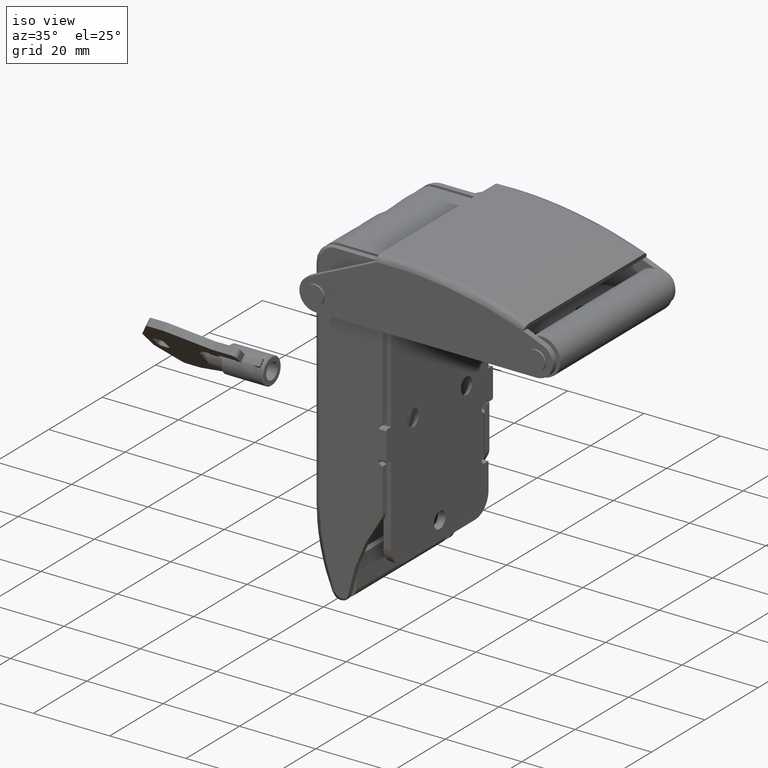
[diagram: clean part render]
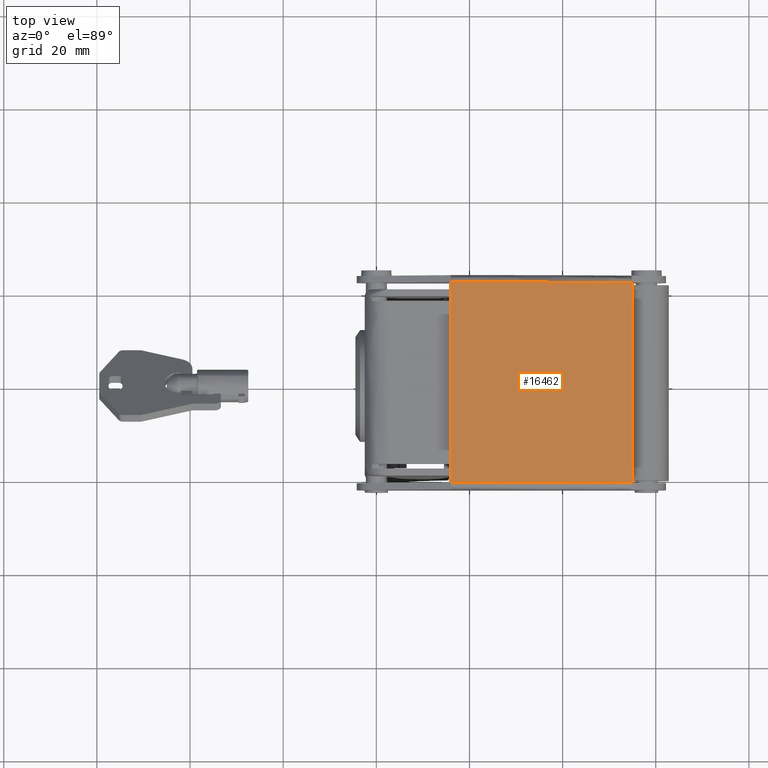
[diagram: tour spotlight — one face highlighted and labeled with its STEP entity id]
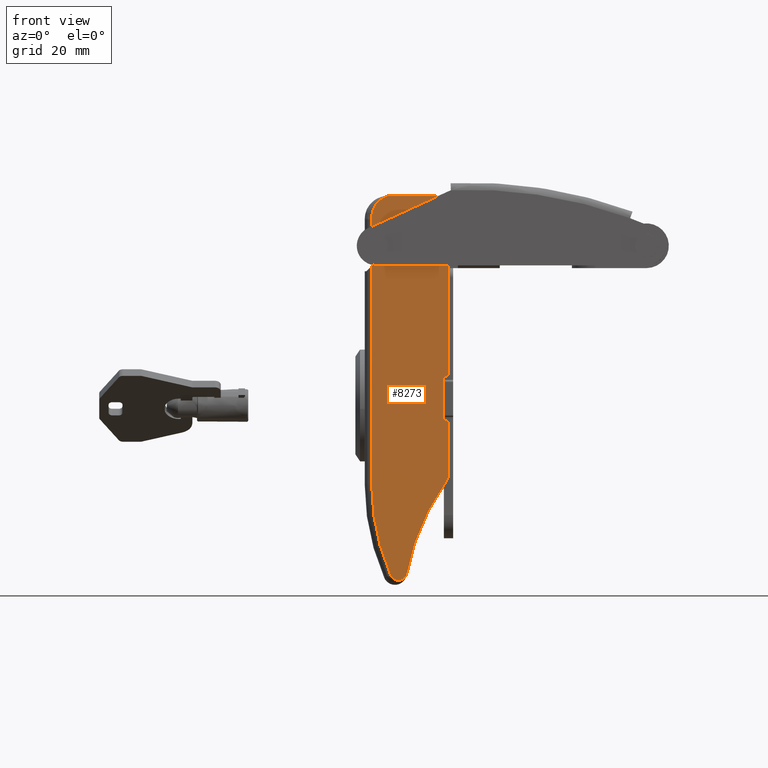
[diagram: tour spotlight — one face highlighted and labeled with its STEP entity id]
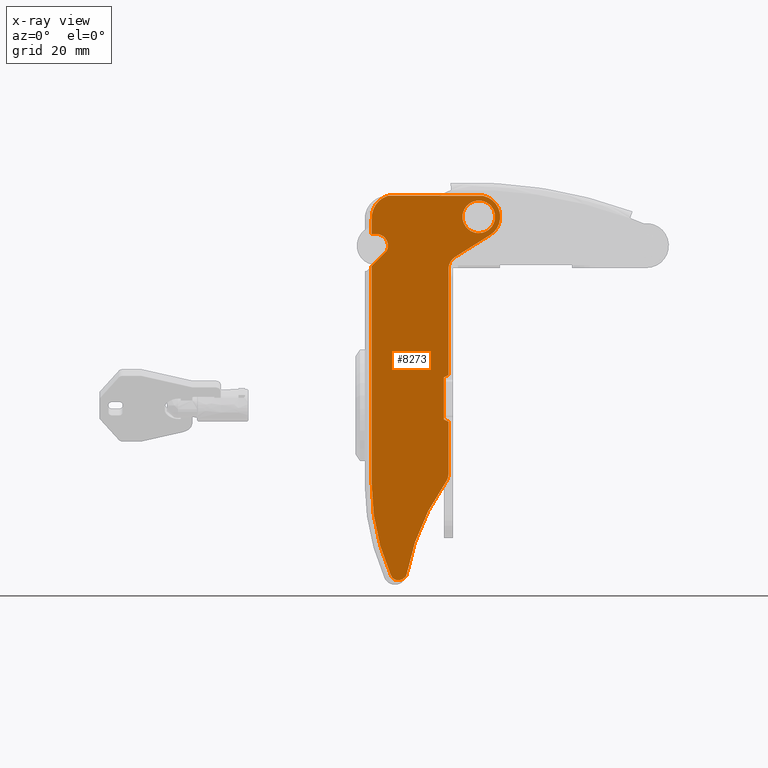
[diagram: x-ray of the same camera — body ghosted, this tour face saturated]
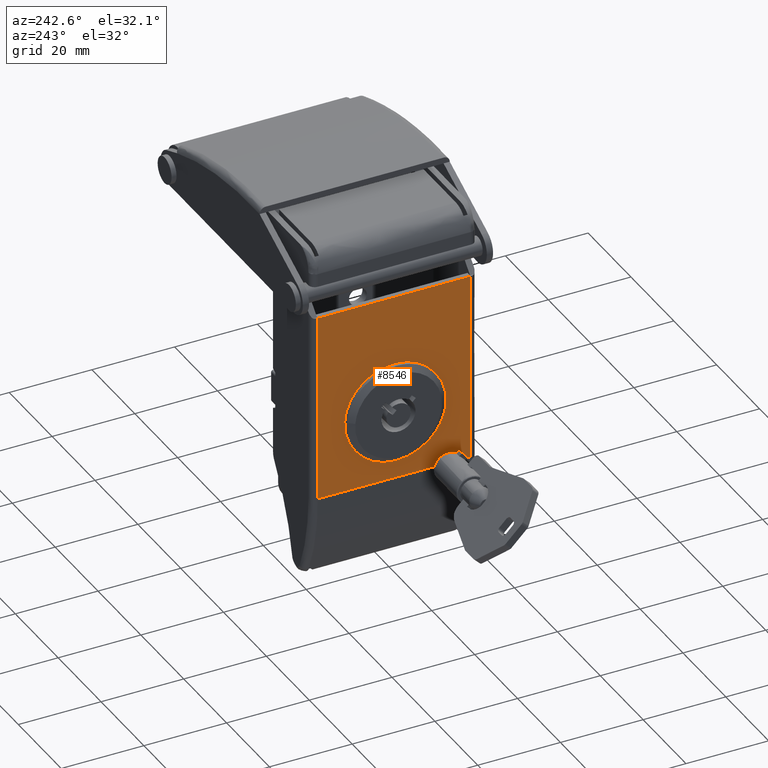
[diagram: tour spotlight — one face highlighted and labeled with its STEP entity id]
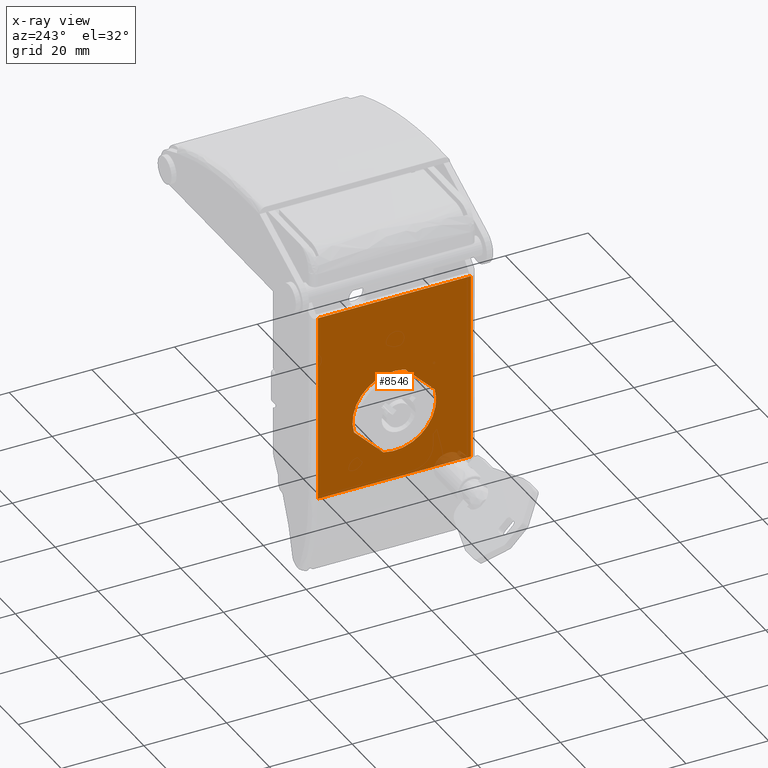
[diagram: x-ray of the same camera — body ghosted, this tour face saturated]
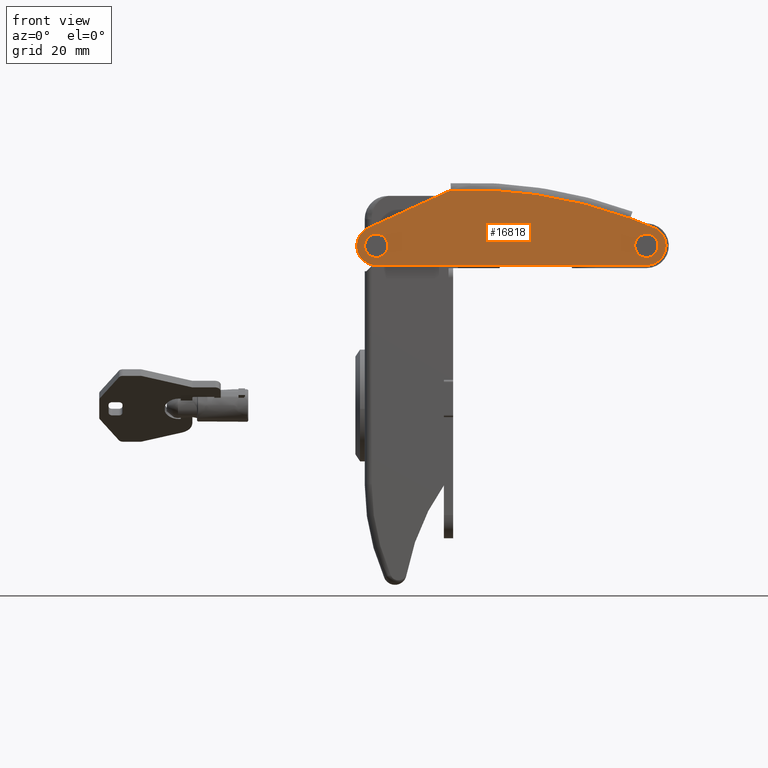
[diagram: tour spotlight — one face highlighted and labeled with its STEP entity id]
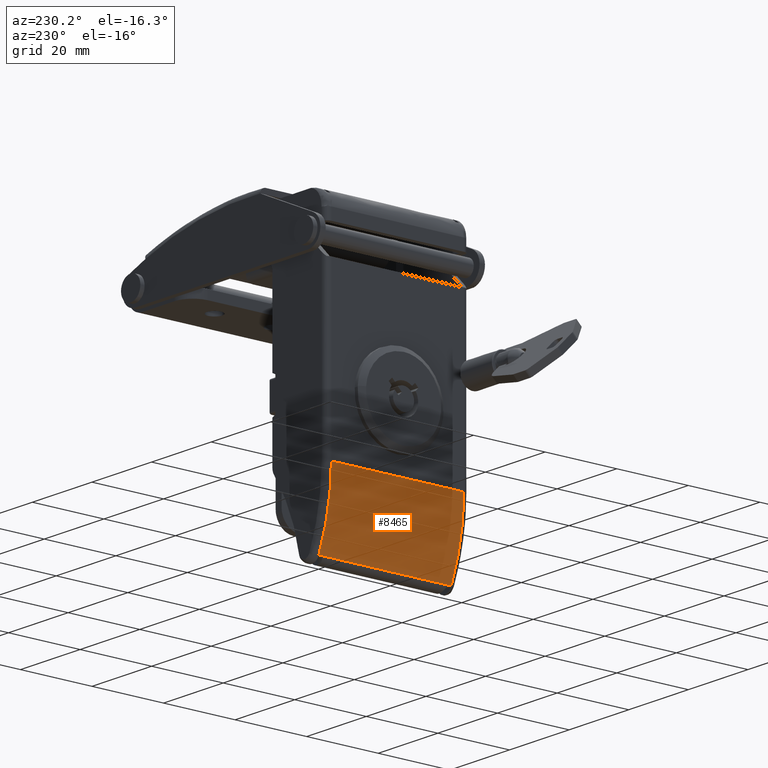
[diagram: tour spotlight — one face highlighted and labeled with its STEP entity id]
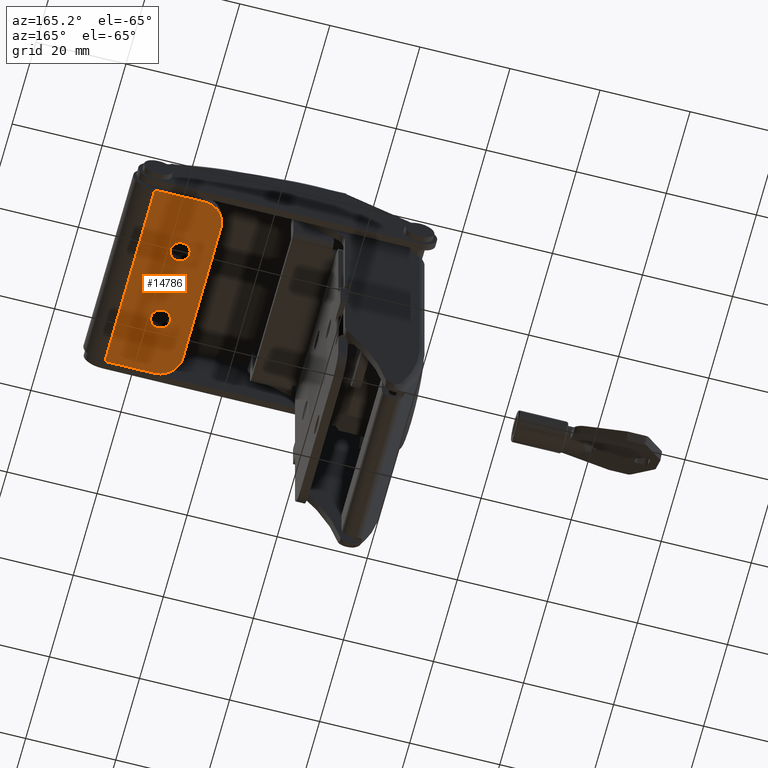
[diagram: tour spotlight — one face highlighted and labeled with its STEP entity id]
A machine part: a face-by-face anatomy tour. The part has 335 B-rep faces; the first image is the clean iso view, then the 6 largest visible faces are spotlighted one at a time (largest first), each with its STEP entity span.

Face 1 — top view, entity #16462. In plain terms, the highlighted face is a freeform B-spline surface patch.
Definition (entity closure, byte-faithful):
#16179=CARTESIAN_POINT('',(55.015775861710900,21.500000000255650,7.321152724149020));
#16180=VERTEX_POINT('',#16179);
#16195=CARTESIAN_POINT('',(15.938275861711800,21.500000000358451,13.430340487239960));
#16196=VERTEX_POINT('',#16195);
#16208=CARTESIAN_POINT('',(55.015775861710900,21.500000000255650,7.321152724149020));
#16209=CARTESIAN_POINT('',(36.083806188462020,21.500000000305587,14.257024958579864));
#16210=CARTESIAN_POINT('',(15.938275861711819,21.500000000358540,13.430340487239970));
#16218=(BOUNDED_CURVE()B_SPLINE_CURVE(2,(#16208,#16209,#16210),.UNSPECIFIED.,.F.,.U.)CURVE()GEOMETRIC_REPRESENTATION_ITEM()QUASI_UNIFORM_CURVE()RATIONAL_B_SPLINE_CURVE((1.0,0.980835393838209,1.0))REPRESENTATION_ITEM(''));
#16219=EDGE_CURVE('',#16180,#16196,#16218,.T.);
#16395=CARTESIAN_POINT('',(55.015775861710900,-21.500000000400298,7.321152724149020));
#16396=VERTEX_POINT('',#16395);
#16397=CARTESIAN_POINT('',(55.015775861710900,-21.500000000400298,7.321152724149020));
#16398=CARTESIAN_POINT('',(55.015775861710900,21.500000000255650,7.321152724149020));
#16399=QUASI_UNIFORM_CURVE('',1,(#16397,#16398),.UNSPECIFIED.,.F.,.U.);
#16400=EDGE_CURVE('',#16396,#16180,#16399,.T.);
#16424=CARTESIAN_POINT('',(56.858196006325791,-22.575000000419273,6.625822893177156));
#16425=CARTESIAN_POINT('',(56.858196006325791,22.601875000377898,6.625822893177156));
#16426=CARTESIAN_POINT('',(36.144388297023234,-22.575000000419276,14.673634287632586));
#16427=CARTESIAN_POINT('',(36.144388297023234,22.601875000377888,14.673634287632586));
#16428=CARTESIAN_POINT('',(13.962780979871889,-22.575000000419269,13.329984449919809));
#16429=CARTESIAN_POINT('',(13.962780979871889,22.601875000377902,13.329984449919809));
#16437=(BOUNDED_SURFACE()B_SPLINE_SURFACE(1,2,((#16424,#16426,#16428),(#16425,#16427,#16429)),.UNSPECIFIED.,.F.,.F.,.U.)B_SPLINE_SURFACE_WITH_KNOTS((2,2),(3,3),(0.0,45.176875000797168),(1.650570731759071,45.580038685202602),.UNSPECIFIED.)GEOMETRIC_REPRESENTATION_ITEM()RATIONAL_B_SPLINE_SURFACE(((0.998029246128120,0.972669477159944,0.993393423939845),(0.998029246128120,0.972669477159944,0.993393423939845)))REPRESENTATION_ITEM('')SURFACE());
#16438=ORIENTED_EDGE('',*,*,#16400,.T.);
#16439=ORIENTED_EDGE('',*,*,#16219,.T.);
#16440=CARTESIAN_POINT('',(15.938275861711800,-21.500000000400298,13.430340487239960));
#16441=VERTEX_POINT('',#16440);
#16442=CARTESIAN_POINT('',(15.938275861711800,-21.500000000400298,13.430340487239960));
#16443=CARTESIAN_POINT('',(15.938275861711800,21.500000000358451,13.430340487239960));
#16444=QUASI_UNIFORM_CURVE('',1,(#16442,#16443),.UNSPECIFIED.,.F.,.U.);
#16445=EDGE_CURVE('',#16441,#16196,#16444,.T.);
#16446=ORIENTED_EDGE('',*,*,#16445,.F.);
#16447=CARTESIAN_POINT('',(15.938275861711780,-21.500000000400298,13.430340487239970));
#16448=CARTESIAN_POINT('',(36.083806188461992,-21.500000000400298,14.257024958579860));
#16449=CARTESIAN_POINT('',(55.015775861710871,-21.500000000400298,7.321152724149058));
#16457=(BOUNDED_CURVE()B_SPLINE_CURVE(2,(#16447,#16448,#16449),.UNSPECIFIED.,.F.,.U.)CURVE()GEOMETRIC_REPRESENTATION_ITEM()QUASI_UNIFORM_CURVE()RATIONAL_B_SPLINE_CURVE((1.0,0.980835393838210,1.0))REPRESENTATION_ITEM(''));
#16458=EDGE_CURVE('',#16441,#16396,#16457,.T.);
#16459=ORIENTED_EDGE('',*,*,#16458,.T.);
#16460=EDGE_LOOP('',(#16438,#16439,#16446,#16459));
#16461=FACE_OUTER_BOUND('',#16460,.T.);
#16462=ADVANCED_FACE('',(#16461),#16437,.T.);

Face 2 — front view, entity #8273. An x-ray twin of the same camera follows (body ghosted, this face saturated) — the face is partly hidden behind the body. In plain terms, the highlighted face is a freeform B-spline surface patch.
Definition (entity closure, byte-faithful):
#6907=CARTESIAN_POINT('',(25.493248726862969,-19.999999999977099,5.986344778275975));
#6908=VERTEX_POINT('',#6907);
#6914=CARTESIAN_POINT('',(21.999776932377401,-19.999999999960249,9.700014666777326));
#6915=VERTEX_POINT('',#6914);
#6916=CARTESIAN_POINT('',(25.493248726862976,-19.999999999977096,5.986344778275975));
#6917=CARTESIAN_POINT('',(25.499776932394045,-19.999999999976854,6.093079995166878));
#6918=CARTESIAN_POINT('',(25.499776932393790,-19.999999999976598,6.200014666776264));
#6919=CARTESIAN_POINT('',(25.499776932385377,-19.999999999968178,9.700014666776843));
#6920=CARTESIAN_POINT('',(21.999776932377401,-19.999999999960249,9.700014666777326));
#6928=(BOUNDED_CURVE()B_SPLINE_CURVE(2,(#6916,#6917,#6918,#6919,#6920),.UNSPECIFIED.,.F.,.U.)B_SPLINE_CURVE_WITH_KNOTS((3,2,3),(0.239332962235634,0.250000000000000,0.500000000000000),.UNSPECIFIED.)CURVE()GEOMETRIC_REPRESENTATION_ITEM()RATIONAL_B_SPLINE_CURVE((0.976072041659625,0.987502787895960,1.0,0.707106781186548,1.0))REPRESENTATION_ITEM(''));
#6929=EDGE_CURVE('',#6908,#6915,#6928,.T.);
#6931=CARTESIAN_POINT('',(18.506305137891829,-19.999999999977099,6.413684555278547));
#6932=VERTEX_POINT('',#6931);
#6933=CARTESIAN_POINT('',(21.999776932377401,-19.999999999960249,9.700014666777326));
#6934=CARTESIAN_POINT('',(18.707305698320109,-19.999999999968669,9.700014666777841));
#6935=CARTESIAN_POINT('',(18.506305137891829,-19.999999999977106,6.413684555278547));
#6943=(BOUNDED_CURVE()B_SPLINE_CURVE(2,(#6933,#6934,#6935),.UNSPECIFIED.,.F.,.U.)B_SPLINE_CURVE_WITH_KNOTS((3,3),(0.500000000000000,0.739332962235634),.UNSPECIFIED.)CURVE()GEOMETRIC_REPRESENTATION_ITEM()RATIONAL_B_SPLINE_CURVE((1.0,0.719603993290587,0.976072041659625))REPRESENTATION_ITEM(''));
#6944=EDGE_CURVE('',#6915,#6932,#6943,.T.);
#6976=CARTESIAN_POINT('',(21.999776932377401,-19.999999999960249,2.700014666777195));
#6977=VERTEX_POINT('',#6976);
#6978=CARTESIAN_POINT('',(18.506305137891829,-19.999999999977106,6.413684555278547));
#6979=CARTESIAN_POINT('',(18.499776932360767,-19.999999999976858,6.306949338387645));
#6980=CARTESIAN_POINT('',(18.499776932361019,-19.999999999976598,6.200014666778258));
#6981=CARTESIAN_POINT('',(18.499776932369429,-19.999999999968178,2.700014666777678));
#6982=CARTESIAN_POINT('',(21.999776932377401,-19.999999999960249,2.700014666777195));
#6990=(BOUNDED_CURVE()B_SPLINE_CURVE(2,(#6978,#6979,#6980,#6981,#6982),.UNSPECIFIED.,.F.,.U.)B_SPLINE_CURVE_WITH_KNOTS((3,2,3),(0.739332962235634,0.750000000000000,1.0),.UNSPECIFIED.)CURVE()GEOMETRIC_REPRESENTATION_ITEM()RATIONAL_B_SPLINE_CURVE((0.976072041659625,0.987502787895960,1.0,0.707106781186548,1.0))REPRESENTATION_ITEM(''));
#6991=EDGE_CURVE('',#6932,#6977,#6990,.T.);
#6993=CARTESIAN_POINT('',(21.999776932377401,-19.999999999960249,2.700014666777195));
#6994=CARTESIAN_POINT('',(25.292248166434696,-19.999999999968669,2.700014666776681));
#6995=CARTESIAN_POINT('',(25.493248726862976,-19.999999999977096,5.986344778275975));
#7003=(BOUNDED_CURVE()B_SPLINE_CURVE(2,(#6993,#6994,#6995),.UNSPECIFIED.,.F.,.U.)B_SPLINE_CURVE_WITH_KNOTS((3,3),(0.0,0.239332962235634),.UNSPECIFIED.)CURVE()GEOMETRIC_REPRESENTATION_ITEM()RATIONAL_B_SPLINE_CURVE((1.0,0.719603993290587,0.976072041659625))REPRESENTATION_ITEM(''));
#7004=EDGE_CURVE('',#6977,#6908,#7003,.T.);
#7327=CARTESIAN_POINT('',(15.499774046842001,-19.999999999945949,-37.769382233186199));
#7328=VERTEX_POINT('',#7327);
#7343=CARTESIAN_POINT('',(14.499774046842001,-19.999999999945949,-37.299992233129899));
#7344=VERTEX_POINT('',#7343);
#7350=CARTESIAN_POINT('',(15.499774046842001,-19.999999999945949,-37.769382233186199));
#7351=CARTESIAN_POINT('',(14.499774046842001,-19.999999999945949,-37.299992233129899));
#7352=QUASI_UNIFORM_CURVE('',1,(#7350,#7351),.UNSPECIFIED.,.F.,.U.);
#7353=EDGE_CURVE('',#7328,#7344,#7352,.T.);
#7363=CARTESIAN_POINT('',(15.499774046842001,-19.999999999945949,-48.985192541595687));
#7364=VERTEX_POINT('',#7363);
#7378=CARTESIAN_POINT('',(15.499774046842001,-19.999999999945949,-48.985192541595687));
#7379=CARTESIAN_POINT('',(15.499774046842001,-19.999999999945949,-37.769382233186199));
#7380=QUASI_UNIFORM_CURVE('',1,(#7378,#7379),.UNSPECIFIED.,.F.,.U.);
#7381=EDGE_CURVE('',#7364,#7328,#7380,.T.);
#7400=CARTESIAN_POINT('',(14.941518260368660,-19.999999999945949,-50.728145551779498));
#7401=VERTEX_POINT('',#7400);
#7423=CARTESIAN_POINT('',(14.941518260368699,-19.999999999945949,-50.728145551779527));
#7424=CARTESIAN_POINT('',(15.499774046842004,-19.999999999945953,-49.946071779093479));
#7425=CARTESIAN_POINT('',(15.499774046842001,-19.999999999945949,-48.985192541595687));
#7433=(BOUNDED_CURVE()B_SPLINE_CURVE(2,(#7423,#7424,#7425),.UNSPECIFIED.,.F.,.U.)CURVE()GEOMETRIC_REPRESENTATION_ITEM()QUASI_UNIFORM_CURVE()RATIONAL_B_SPLINE_CURVE((1.0,0.952343094121607,1.0))REPRESENTATION_ITEM(''));
#7434=EDGE_CURVE('',#7401,#7364,#7433,.T.);
#7453=CARTESIAN_POINT('',(6.458701718548300,-19.999999999945949,-70.751295573341608));
#7454=VERTEX_POINT('',#7453);
#7476=CARTESIAN_POINT('',(14.941518260368650,-19.999999999945949,-50.728145551779512));
#7477=CARTESIAN_POINT('',(8.469624856660696,-19.999999999945949,-59.794774529573424));
#7478=CARTESIAN_POINT('',(6.458701718548246,-19.999999999945949,-70.751295573341622));
#7486=(BOUNDED_CURVE()B_SPLINE_CURVE(2,(#7476,#7477,#7478),.UNSPECIFIED.,.F.,.U.)CURVE()GEOMETRIC_REPRESENTATION_ITEM()QUASI_UNIFORM_CURVE()RATIONAL_B_SPLINE_CURVE((1.0,0.976069428203334,1.0))REPRESENTATION_ITEM(''));
#7487=EDGE_CURVE('',#7401,#7454,#7486,.T.);
#7497=CARTESIAN_POINT('',(16.907162188630348,-19.999999999945949,-2.418186660348180));
#7498=VERTEX_POINT('',#7497);
#7513=CARTESIAN_POINT('',(24.441781781635200,-19.999999999945949,2.301731414344360));
#7514=VERTEX_POINT('',#7513);
#7520=CARTESIAN_POINT('',(16.907162188630348,-19.999999999945949,-2.418186660348180));
#7521=CARTESIAN_POINT('',(24.441781781635200,-19.999999999945949,2.301731414344360));
#7522=QUASI_UNIFORM_CURVE('',1,(#7520,#7521),.UNSPECIFIED.,.F.,.U.);
#7523=EDGE_CURVE('',#7498,#7514,#7522,.T.);
#7558=CARTESIAN_POINT('',(15.499774046842001,-19.999999999945949,-4.960545303239409));
#7559=VERTEX_POINT('',#7558);
#7560=CARTESIAN_POINT('',(16.907162188630359,-19.999999999945949,-2.418186660348193));
#7561=CARTESIAN_POINT('',(15.499774046842001,-19.999999999945949,-3.299817995087654));
#7562=CARTESIAN_POINT('',(15.499774046842001,-19.999999999945949,-4.960545303239409));
#7570=(BOUNDED_CURVE()B_SPLINE_CURVE(2,(#7560,#7561,#7562),.UNSPECIFIED.,.F.,.U.)CURVE()GEOMETRIC_REPRESENTATION_ITEM()QUASI_UNIFORM_CURVE()RATIONAL_B_SPLINE_CURVE((1.0,0.874891598829215,1.0))REPRESENTATION_ITEM(''));
#7571=EDGE_CURVE('',#7498,#7559,#7570,.T.);
#7586=CARTESIAN_POINT('',(15.499774046842001,-19.999999999945949,-27.769382233288098));
#7587=VERTEX_POINT('',#7586);
#7601=CARTESIAN_POINT('',(15.499774046842001,-19.999999999945949,-27.769382233288098));
#7602=CARTESIAN_POINT('',(15.499774046842001,-19.999999999945949,-4.960545303239409));
#7603=QUASI_UNIFORM_CURVE('',1,(#7601,#7602),.UNSPECIFIED.,.F.,.U.);
#7604=EDGE_CURVE('',#7587,#7559,#7603,.T.);
#7614=CARTESIAN_POINT('',(14.499774046842001,-19.999999999945949,-28.299992233129899));
#7615=VERTEX_POINT('',#7614);
#7629=CARTESIAN_POINT('',(14.499774046842001,-19.999999999945949,-28.299992233129899));
#7630=CARTESIAN_POINT('',(15.499774046842001,-19.999999999945949,-27.769382233288098));
#7631=QUASI_UNIFORM_CURVE('',1,(#7629,#7630),.UNSPECIFIED.,.F.,.U.);
#7632=EDGE_CURVE('',#7615,#7587,#7631,.T.);
#7649=CARTESIAN_POINT('',(14.499774046842001,-19.999999999945949,-37.299992233129899));
#7650=CARTESIAN_POINT('',(14.499774046842001,-19.999999999945949,-28.299992233129899));
#7651=QUASI_UNIFORM_CURVE('',1,(#7649,#7650),.UNSPECIFIED.,.F.,.U.);
#7652=EDGE_CURVE('',#7344,#7615,#7651,.T.);
#7766=CARTESIAN_POINT('',(3.083984573167785,-19.999999999945949,-70.701650843723201));
#7767=VERTEX_POINT('',#7766);
#7778=CARTESIAN_POINT('',(3.083984573167785,-19.999999999945949,-70.701650843723201));
#7779=CARTESIAN_POINT('',(3.155406890149872,-19.999999999945938,-70.864409725088549));
#7780=CARTESIAN_POINT('',(3.285671436075693,-19.999999999945960,-71.099710785103923));
#7781=CARTESIAN_POINT('',(3.503392164731010,-19.999999999945949,-71.353748046265792));
#7782=CARTESIAN_POINT('',(3.695185336792640,-19.999999999945949,-71.523650604939348));
#7783=CARTESIAN_POINT('',(3.921326805649979,-19.999999999945949,-71.667735979846782));
#7784=CARTESIAN_POINT('',(4.201983059337533,-19.999999999946009,-71.777734406220048));
#7785=CARTESIAN_POINT('',(4.507994283464209,-19.999999999945850,-71.841213507185373));
#7786=CARTESIAN_POINT('',(4.787305074712077,-19.999999999946180,-71.845573858723512));
#7787=CARTESIAN_POINT('',(5.074113853746685,-19.999999999945778,-71.805278497980822));
#7788=CARTESIAN_POINT('',(5.363319176042260,-19.999999999946070,-71.721052274380241));
#7789=CARTESIAN_POINT('',(5.655822205915604,-19.999999999945899,-71.582584046103761));
#7790=CARTESIAN_POINT('',(5.904340301766458,-19.999999999945960,-71.412931434553940));
#7791=CARTESIAN_POINT('',(6.186441025592925,-19.999999999945960,-71.159838832853467));
#7792=CARTESIAN_POINT('',(6.359158552159733,-19.999999999945949,-70.924805665536482));
#7793=CARTESIAN_POINT('',(6.458701718548300,-19.999999999945949,-70.751295573341608));
#7794=B_SPLINE_CURVE_WITH_KNOTS('',3,(#7778,#7779,#7780,#7781,#7782,#7783,#7784,#7785,#7786,#7787,#7788,#7789,#7790,#7791,#7792,#7793),.UNSPECIFIED.,.F.,.U.,(4,1,1,1,1,1,1,1,1,1,1,1,1,4),(0.000056966221293,0.533859768130120,0.800739791419995,1.000873855711929,1.301085426827991,1.601342412525967,1.901562680357806,2.235149206894766,2.435292209398802,2.768942675077200,3.135866670185354,3.402729072915409,3.669589783984510,4.270081145491173),.UNSPECIFIED.);
#7795=EDGE_CURVE('',#7767,#7454,#7794,.T.);
#7833=CARTESIAN_POINT('',(-1.000225953158206,-19.999999999945949,-51.221208204238401));
#7834=VERTEX_POINT('',#7833);
#7835=CARTESIAN_POINT('',(-1.000225953158206,-19.999999999945949,-51.221208204238401));
#7836=CARTESIAN_POINT('',(-1.000225953157997,-19.999999999945949,-61.389571120454121));
#7837=CARTESIAN_POINT('',(3.083984573167817,-19.999999999945949,-70.701650843723186));
#7845=(BOUNDED_CURVE()B_SPLINE_CURVE(2,(#7835,#7836,#7837),.UNSPECIFIED.,.F.,.U.)CURVE()GEOMETRIC_REPRESENTATION_ITEM()QUASI_UNIFORM_CURVE()RATIONAL_B_SPLINE_CURVE((1.0,0.978720969859133,1.0))REPRESENTATION_ITEM(''));
#7846=EDGE_CURVE('',#7834,#7767,#7845,.T.);
#7901=CARTESIAN_POINT('',(-1.000225953158002,-19.999999999945949,-4.343328473335526));
#7902=VERTEX_POINT('',#7901);
#7903=CARTESIAN_POINT('',(-1.000225953158002,-19.999999999945949,-4.343328473335526));
#7904=CARTESIAN_POINT('',(-1.000225953158206,-19.999999999945949,-51.221208204238401));
#7905=QUASI_UNIFORM_CURVE('',1,(#7903,#7904),.UNSPECIFIED.,.F.,.U.);
#7906=EDGE_CURVE('',#7902,#7834,#7905,.T.);
#7950=CARTESIAN_POINT('',(2.499774046842360,-19.999999999945949,10.700183812501679));
#7951=VERTEX_POINT('',#7950);
#7952=CARTESIAN_POINT('',(-1.000225953158008,-19.999999999945949,5.700183812501681));
#7953=VERTEX_POINT('',#7952);
#7954=CARTESIAN_POINT('',(2.499774046842360,-19.999999999945949,10.700183812501679));
#7955=CARTESIAN_POINT('',(2.236357486309291,-19.999999999945999,10.624773446090620));
#7956=CARTESIAN_POINT('',(1.850537638179820,-19.999999999945910,10.478590280144850));
#7957=CARTESIAN_POINT('',(1.277139425024689,-19.999999999945921,10.169295906861100));
#7958=CARTESIAN_POINT('',(0.814857967655667,-19.999999999946098,9.841426513549486));
#7959=CARTESIAN_POINT('',(0.349624339655548,-19.999999999945761,9.409605069903098));
#7960=CARTESIAN_POINT('',(-0.024839238779591,-19.999999999946159,8.962008027301614));
#7961=CARTESIAN_POINT('',(-0.385764083144784,-19.999999999945910,8.398582090051045));
#7962=CARTESIAN_POINT('',(-0.634662743652300,-19.999999999945960,7.851042430163565));
#7963=CARTESIAN_POINT('',(-0.845508448538753,-19.999999999945949,7.180701647287645));
#7964=CARTESIAN_POINT('',(-0.927543013372867,-19.999999999945938,6.741649591920182));
#7965=CARTESIAN_POINT('',(-0.962963627609169,-19.999999999945949,6.418268435234536));
#7966=CARTESIAN_POINT('',(-0.968478774427883,-19.999999999945949,6.367158971150658));
#7967=CARTESIAN_POINT('',(-0.990870514811258,-19.999999999945981,6.128402212925225));
#7968=CARTESIAN_POINT('',(-1.000209345385696,-19.999999999945921,5.905695816023554));
#7969=CARTESIAN_POINT('',(-1.000225953158008,-19.999999999945949,5.700183812501681));
#7970=B_SPLINE_CURVE_WITH_KNOTS('',3,(#7954,#7955,#7956,#7957,#7958,#7959,#7960,#7961,#7962,#7963,#7964,#7965,#7966,#7967,#7968,#7969),.UNSPECIFIED.,.F.,.U.,(4,1,1,1,1,1,1,1,1,1,1,1,1,4),(-0.000045433782809,0.822035576750134,1.233061354963971,1.952399315909520,2.517561020062588,3.134092355096195,3.699273317905107,4.521313899736311,4.932333753867603,5.805748911042134,5.857126662226975,5.908504413411817,5.959944426411068,6.576519260456877),.UNSPECIFIED.);
#7971=EDGE_CURVE('',#7951,#7953,#7970,.T.);
#8027=CARTESIAN_POINT('',(-1.000225953158008,-19.999999999945949,2.499993100570495));
#8028=VERTEX_POINT('',#8027);
#8042=CARTESIAN_POINT('',(-1.000225953158008,-19.999999999945949,5.700183812501681));
#8043=CARTESIAN_POINT('',(-1.000225953158008,-19.999999999945949,2.499993100570495));
#8044=QUASI_UNIFORM_CURVE('',1,(#8042,#8043),.UNSPECIFIED.,.F.,.U.);
#8045=EDGE_CURVE('',#7953,#8028,#8044,.T.);
#8193=CARTESIAN_POINT('',(-2.378811877774128,-19.999999999945949,14.823102554177099));
#8194=CARTESIAN_POINT('',(27.977679592343371,-19.999999999945949,14.823102554177099));
#8195=CARTESIAN_POINT('',(-2.378811877774128,-19.999999999945949,-75.963656095160374));
#8196=CARTESIAN_POINT('',(27.977679592343371,-19.999999999945949,-75.963656095160374));
#8197=B_SPLINE_SURFACE_WITH_KNOTS('',1,1,((#8193,#8195),(#8194,#8196)),.UNSPECIFIED.,.F.,.F.,.U.,(2,2),(2,2),(0.0,30.356491470117501),(0.0,90.786758649337472),.UNSPECIFIED.);
#8198=ORIENTED_EDGE('',*,*,#7846,.T.);
#8199=ORIENTED_EDGE('',*,*,#7795,.T.);
#8200=ORIENTED_EDGE('',*,*,#7487,.F.);
#8201=ORIENTED_EDGE('',*,*,#7434,.T.);
#8202=ORIENTED_EDGE('',*,*,#7381,.T.);
#8203=ORIENTED_EDGE('',*,*,#7353,.T.);
#8204=ORIENTED_EDGE('',*,*,#7652,.T.);
#8205=ORIENTED_EDGE('',*,*,#7632,.T.);
#8206=ORIENTED_EDGE('',*,*,#7604,.T.);
#8207=ORIENTED_EDGE('',*,*,#7571,.F.);
#8208=ORIENTED_EDGE('',*,*,#7523,.T.);
#8209=CARTESIAN_POINT('',(22.952917876774599,-19.999999999945949,10.700183812500160));
#8210=VERTEX_POINT('',#8209);
#8211=CARTESIAN_POINT('',(24.441781781635200,-19.999999999945949,2.301731414344360));
#8212=CARTESIAN_POINT('',(24.851528711388699,-19.999999999945938,2.558087759102638));
#8213=CARTESIAN_POINT('',(25.393524294220072,-19.999999999945960,3.031361726145397));
#8214=CARTESIAN_POINT('',(25.941459372634348,-19.999999999945931,3.796103019380586));
#8215=CARTESIAN_POINT('',(26.253445383342999,-19.999999999946031,4.405026386801782));
#8216=CARTESIAN_POINT('',(26.517631852224170,-19.999999999945860,5.188430821119320));
#8217=CARTESIAN_POINT('',(26.625661785004809,-19.999999999945970,6.011817005922373));
#8218=CARTESIAN_POINT('',(26.572537248734530,-19.999999999945960,6.836843568011974));
#8219=CARTESIAN_POINT('',(26.428218622556631,-19.999999999945949,7.505619009004221));
#8220=CARTESIAN_POINT('',(26.146435720509139,-19.999999999945931,8.252451821154779));
#8221=CARTESIAN_POINT('',(25.715460271523192,-19.999999999945999,8.961276719001010));
#8222=CARTESIAN_POINT('',(25.099223842518839,-19.999999999945839,9.634854457067286));
#8223=CARTESIAN_POINT('',(24.231087586043980,-19.999999999946208,10.287291381150061));
#8224=CARTESIAN_POINT('',(23.453667334291641,-19.999999999945668,10.594499890836010));
#8225=CARTESIAN_POINT('',(22.952917876774599,-19.999999999945949,10.700183812500160));
#8226=B_SPLINE_CURVE_WITH_KNOTS('',3,(#8211,#8212,#8213,#8214,#8215,#8216,#8217,#8218,#8219,#8220,#8221,#8222,#8223,#8224,#8225),.UNSPECIFIED.,.F.,.U.,(4,1,1,1,1,1,1,1,1,1,1,1,4),(0.000000067265232,1.449900371442176,2.132245747762784,2.814567435879630,3.496897583227690,4.605671947228109,5.287983626663533,5.970275209764155,6.652595537493421,7.676073839593348,8.443697540073304,9.381903681488574,10.917099228611621),.UNSPECIFIED.);
#8227=EDGE_CURVE('',#7514,#8210,#8226,.T.);
#8228=ORIENTED_EDGE('',*,*,#8227,.T.);
#8229=CARTESIAN_POINT('',(22.952917876774599,-19.999999999945949,10.700183812500160));
#8230=CARTESIAN_POINT('',(2.499774046842360,-19.999999999945949,10.700183812501679));
#8231=QUASI_UNIFORM_CURVE('',1,(#8229,#8230),.UNSPECIFIED.,.F.,.U.);
#8232=EDGE_CURVE('',#8210,#7951,#8231,.T.);
#8233=ORIENTED_EDGE('',*,*,#8232,.T.);
#8234=ORIENTED_EDGE('',*,*,#7971,.T.);
#8235=ORIENTED_EDGE('',*,*,#8045,.T.);
#8236=CARTESIAN_POINT('',(0.005873423187259,-19.999999999945949,2.499993100570495));
#8237=VERTEX_POINT('',#8236);
#8238=CARTESIAN_POINT('',(-1.000225953158008,-19.999999999945949,2.499993100570495));
#8239=CARTESIAN_POINT('',(0.005873423187259,-19.999999999945949,2.499993100570495));
#8240=QUASI_UNIFORM_CURVE('',1,(#8238,#8239),.UNSPECIFIED.,.F.,.U.);
#8241=EDGE_CURVE('',#8028,#8237,#8240,.T.);
#8242=ORIENTED_EDGE('',*,*,#8241,.T.);
#8243=CARTESIAN_POINT('',(2.246805521808905,-19.999999999945949,-1.096296998341424));
#8244=VERTEX_POINT('',#8243);
#8245=CARTESIAN_POINT('',(2.246805521808905,-19.999999999945949,-1.096296998341424));
#8246=CARTESIAN_POINT('',(2.362418727221813,-19.999999999945949,-0.859685329561728));
#8247=CARTESIAN_POINT('',(2.494362906527678,-19.999999999945960,-0.426060865581460));
#8248=CARTESIAN_POINT('',(2.514010248951584,-19.999999999945999,0.289077523548782));
#8249=CARTESIAN_POINT('',(2.377074183528604,-19.999999999945850,0.845721192772266));
#8250=CARTESIAN_POINT('',(2.125694441529584,-19.999999999945899,1.339872285625436));
#8251=CARTESIAN_POINT('',(1.847537741680435,-19.999999999946048,1.710314480121532));
#8252=CARTESIAN_POINT('',(1.449931514502486,-19.999999999945949,2.059894994366181));
#8253=CARTESIAN_POINT('',(0.848062567083275,-19.999999999945921,2.395094408958519));
#8254=CARTESIAN_POINT('',(0.335097166145353,-19.999999999946109,2.499558226959765));
#8255=CARTESIAN_POINT('',(0.005873423187259,-19.999999999945949,2.499993100570495));
#8256=B_SPLINE_CURVE_WITH_KNOTS('',3,(#8245,#8246,#8247,#8248,#8249,#8250,#8251,#8252,#8253,#8254,#8255),.UNSPECIFIED.,.F.,.U.,(4,1,1,1,1,1,1,1,4),(0.000000247665464,0.790001145024830,1.343016016056788,2.133049387448984,2.488566362820209,3.001992927118727,3.515520558379681,4.068546506930440,5.056044632859097),.UNSPECIFIED.);
#8257=EDGE_CURVE('',#8244,#8237,#8256,.T.);
#8258=ORIENTED_EDGE('',*,*,#8257,.F.);
#8259=CARTESIAN_POINT('',(2.246805521808905,-19.999999999945949,-1.096296998341424));
#8260=CARTESIAN_POINT('',(-1.000225953158002,-19.999999999945949,-4.343328473335526));
#8261=QUASI_UNIFORM_CURVE('',1,(#8259,#8260),.UNSPECIFIED.,.F.,.U.);
#8262=EDGE_CURVE('',#8244,#7902,#8261,.T.);
#8263=ORIENTED_EDGE('',*,*,#8262,.T.);
#8264=ORIENTED_EDGE('',*,*,#7906,.T.);
#8265=EDGE_LOOP('',(#8198,#8199,#8200,#8201,#8202,#8203,#8204,#8205,#8206,#8207,#8208,#8228,#8233,#8234,#8235,#8242,#8258,#8263,#8264));
#8266=FACE_OUTER_BOUND('',#8265,.T.);
#8267=ORIENTED_EDGE('',*,*,#6944,.F.);
#8268=ORIENTED_EDGE('',*,*,#6929,.F.);
#8269=ORIENTED_EDGE('',*,*,#7004,.F.);
#8270=ORIENTED_EDGE('',*,*,#6991,.F.);
#8271=EDGE_LOOP('',(#8267,#8268,#8269,#8270));
#8272=FACE_BOUND('',#8271,.T.);
#8273=ADVANCED_FACE('',(#8266,#8272),#8197,.F.);

Face 3 — auxiliary view, entity #8546. An x-ray twin of the same camera follows (body ghosted, this face saturated) — the face is partly hidden behind the body. In plain terms, the highlighted face is a freeform B-spline surface patch.
Definition (entity closure, byte-faithful):
#7817=CARTESIAN_POINT('',(-2.500225953158205,-18.499999999945899,-51.221208204238401));
#7818=VERTEX_POINT('',#7817);
#7878=CARTESIAN_POINT('',(-2.500225953158010,-18.499999999945899,-5.481972748027201));
#7879=VERTEX_POINT('',#7878);
#7895=CARTESIAN_POINT('',(-2.500225953158205,-18.499999999945899,-51.221208204238401));
#7896=CARTESIAN_POINT('',(-2.500225953158010,-18.499999999945899,-5.481972748027201));
#7897=QUASI_UNIFORM_CURVE('',1,(#7895,#7896),.UNSPECIFIED.,.F.,.U.);
#7898=EDGE_CURVE('',#7818,#7879,#7897,.T.);
#8433=CARTESIAN_POINT('',(-2.500225953158205,18.499999999953548,-51.221208204238401));
#8434=VERTEX_POINT('',#8433);
#8435=CARTESIAN_POINT('',(-2.500225953158205,-18.499999999945899,-51.221208204238401));
#8436=CARTESIAN_POINT('',(-2.500225953158205,18.499999999953548,-51.221208204238401));
#8437=QUASI_UNIFORM_CURVE('',1,(#8435,#8436),.UNSPECIFIED.,.F.,.U.);
#8438=EDGE_CURVE('',#7818,#8434,#8437,.T.);
#8466=CARTESIAN_POINT('',(-2.500225953158005,-20.348149928227699,-3.197298025640963));
#8467=CARTESIAN_POINT('',(-2.500225953158005,-20.348149928227699,-53.505884153446537));
#8468=CARTESIAN_POINT('',(-2.500225953158005,20.348150920652682,-3.197298025640963));
#8469=CARTESIAN_POINT('',(-2.500225953158005,20.348150920652682,-53.505884153446537));
#8470=B_SPLINE_SURFACE_WITH_KNOTS('',1,1,((#8466,#8468),(#8467,#8469)),.UNSPECIFIED.,.F.,.F.,.U.,(2,2),(2,2),(0.0,50.308586127805583),(0.0,40.696300848880377),.UNSPECIFIED.);
#8471=CARTESIAN_POINT('',(-2.500225953158010,18.499999999953548,-5.481972748027201));
#8472=VERTEX_POINT('',#8471);
#8473=CARTESIAN_POINT('',(-2.500225953158010,-18.499999999945899,-5.481972748027201));
#8474=CARTESIAN_POINT('',(-2.500225953158010,18.499999999953548,-5.481972748027201));
#8475=QUASI_UNIFORM_CURVE('',1,(#8473,#8474),.UNSPECIFIED.,.F.,.U.);
#8476=EDGE_CURVE('',#7879,#8472,#8475,.T.);
#8477=ORIENTED_EDGE('',*,*,#8476,.T.);
#8478=CARTESIAN_POINT('',(-2.500225953158010,18.499999999953548,-5.481972748027201));
#8479=CARTESIAN_POINT('',(-2.500225953158205,18.499999999953548,-51.221208204238401));
#8480=QUASI_UNIFORM_CURVE('',1,(#8478,#8479),.UNSPECIFIED.,.F.,.U.);
#8481=EDGE_CURVE('',#8472,#8434,#8480,.T.);
#8482=ORIENTED_EDGE('',*,*,#8481,.T.);
#8483=ORIENTED_EDGE('',*,*,#8438,.F.);
#8484=ORIENTED_EDGE('',*,*,#7898,.T.);
#8485=EDGE_LOOP('',(#8477,#8482,#8483,#8484));
#8486=FACE_OUTER_BOUND('',#8485,.T.);
#8487=CARTESIAN_POINT('',(-2.500225953158240,-2.620147750149489,-24.545771312030048));
#8488=VERTEX_POINT('',#8487);
#8489=CARTESIAN_POINT('',(-2.500225953158240,9.754220920615101,-36.920139982794602));
#8490=VERTEX_POINT('',#8489);
#8491=CARTESIAN_POINT('',(-2.500225953158240,-2.620147750149489,-24.545771312030048));
#8492=CARTESIAN_POINT('',(-2.500225953158239,-1.874923478107063,-24.345444867738440));
#8493=CARTESIAN_POINT('',(-2.500225953158245,-0.667616405447061,-24.165904098504111));
#8494=CARTESIAN_POINT('',(-2.500225953158228,1.016279555317478,-24.220333056226330));
#8495=CARTESIAN_POINT('',(-2.500225953158281,2.296601490539512,-24.436612712700661));
#8496=CARTESIAN_POINT('',(-2.500225953158156,3.564719314696416,-24.820887985311462));
#8497=CARTESIAN_POINT('',(-2.500225953158366,4.800169992880317,-25.374238673536940));
#8498=CARTESIAN_POINT('',(-2.500225953158227,5.897562224988604,-26.068993076547930));
#8499=CARTESIAN_POINT('',(-2.500225953158213,7.070798647656003,-27.031633131322000));
#8500=CARTESIAN_POINT('',(-2.500225953158275,8.052359438651484,-28.123620849859410));
#8501=CARTESIAN_POINT('',(-2.500225953158232,8.894355303214519,-29.453832429747909));
#8502=CARTESIAN_POINT('',(-2.500225953158243,9.462705953076373,-30.682042121825258));
#8503=CARTESIAN_POINT('',(-2.500225953158229,9.925613539155867,-32.187208546687152));
#8504=CARTESIAN_POINT('',(-2.500225953158270,10.134667430288340,-33.779749299032062));
#8505=CARTESIAN_POINT('',(-2.500225953158170,10.072742894570791,-35.436204788781318));
#8506=CARTESIAN_POINT('',(-2.500225953158398,9.890094797550095,-36.414448236096483));
#8507=CARTESIAN_POINT('',(-2.500225953158240,9.754220920615101,-36.920139982794602));
#8508=B_SPLINE_CURVE_WITH_KNOTS('',3,(#8491,#8492,#8493,#8494,#8495,#8496,#8497,#8498,#8499,#8500,#8501,#8502,#8503,#8504,#8505,#8506,#8507),.UNSPECIFIED.,.F.,.U.,(4,1,1,1,1,1,1,1,1,1,1,1,1,1,4),(0.000000132948948,2.315003151542104,3.637894152322197,5.043469279234934,6.200992857321850,7.606567286806271,9.094793661683363,10.086938729531679,12.153895485306020,13.476782047962400,14.799673241052030,16.205242267319719,18.189567484608538,19.595149743479730,21.166030105088719),.UNSPECIFIED.);
#8509=EDGE_CURVE('',#8488,#8490,#8508,.T.);
#8510=ORIENTED_EDGE('',*,*,#8509,.F.);
#8511=CARTESIAN_POINT('',(-2.500225953158240,-9.754220920505961,-31.679844482386500));
#8512=VERTEX_POINT('',#8511);
#8513=CARTESIAN_POINT('',(-2.500225953158240,-9.754220920505961,-31.679844482386500));
#8514=CARTESIAN_POINT('',(-2.500225953158240,-2.620147750149489,-24.545771312030048));
#8515=QUASI_UNIFORM_CURVE('',1,(#8513,#8514),.UNSPECIFIED.,.F.,.U.);
#8516=EDGE_CURVE('',#8512,#8488,#8515,.T.);
#8517=ORIENTED_EDGE('',*,*,#8516,.F.);
#8518=CARTESIAN_POINT('',(-2.500225953158175,2.620147750258640,-44.054213153151103));
#8519=VERTEX_POINT('',#8518);
#8520=CARTESIAN_POINT('',(-2.500225953158175,2.620147750258640,-44.054213153151103));
#8521=CARTESIAN_POINT('',(-2.500225953158280,2.114447953203439,-44.190082594463320));
#8522=CARTESIAN_POINT('',(-2.500225953158212,1.109030707087300,-44.377820381844877));
#8523=CARTESIAN_POINT('',(-2.500225953158259,-0.630996861920046,-44.435728372182808));
#8524=CARTESIAN_POINT('',(-2.500225953158232,-2.550287732598690,-44.151865558104852));
#8525=CARTESIAN_POINT('',(-2.500225953158264,-4.392164062379129,-43.459059655254158));
#8526=CARTESIAN_POINT('',(-2.500225953158214,-5.716756154996448,-42.657900287042963));
#8527=CARTESIAN_POINT('',(-2.500225953158292,-6.757412087218724,-41.839024778044333));
#8528=CARTESIAN_POINT('',(-2.500225953158174,-7.597647659242750,-40.998782684107503));
#8529=CARTESIAN_POINT('',(-2.500225953158303,-8.404201153615260,-39.947485709985827));
#8530=CARTESIAN_POINT('',(-2.500225953158202,-9.048251984447658,-38.852356650369373));
#8531=CARTESIAN_POINT('',(-2.500225953158232,-9.651557020913449,-37.428189230835613));
#8532=CARTESIAN_POINT('',(-2.500225953158345,-10.048064520114030,-35.786107823257232));
#8533=CARTESIAN_POINT('',(-2.500225953157967,-10.154485397912490,-33.769592048974232));
#8534=CARTESIAN_POINT('',(-2.500225953158679,-9.954576002932884,-32.425067959428617));
#8535=CARTESIAN_POINT('',(-2.500225953158240,-9.754220920505961,-31.679844482386500));
#8536=B_SPLINE_CURVE_WITH_KNOTS('',3,(#8520,#8521,#8522,#8523,#8524,#8525,#8526,#8527,#8528,#8529,#8530,#8531,#8532,#8533,#8534,#8535),.UNSPECIFIED.,.F.,.U.,(4,1,1,1,1,1,1,1,1,1,1,1,1,4),(0.000000132999581,1.570903060574899,3.059142701359910,5.208828429812282,7.358523995274988,8.929442933381695,9.838897590663537,11.327117700785720,12.484638288332970,13.807525953250151,15.130402000010010,17.114728967371779,18.851005345146248,21.166030105088709),.UNSPECIFIED.);
#8537=EDGE_CURVE('',#8519,#8512,#8536,.T.);
#8538=ORIENTED_EDGE('',*,*,#8537,.F.);
#8539=CARTESIAN_POINT('',(-2.500225953158240,9.754220920615101,-36.920139982794602));
#8540=CARTESIAN_POINT('',(-2.500225953158175,2.620147750258640,-44.054213153151103));
#8541=QUASI_UNIFORM_CURVE('',1,(#8539,#8540),.UNSPECIFIED.,.F.,.U.);
#8542=EDGE_CURVE('',#8490,#8519,#8541,.T.);
#8543=ORIENTED_EDGE('',*,*,#8542,.F.);
#8544=EDGE_LOOP('',(#8510,#8517,#8538,#8543));
#8545=FACE_BOUND('',#8544,.T.);
#8546=ADVANCED_FACE('',(#8486,#8545),#8470,.F.);

Face 4 — front view, entity #16818. In plain terms, the highlighted face is a freeform B-spline surface patch.
Definition (entity closure, byte-faithful):
#15054=CARTESIAN_POINT('',(2.495336996032248,-23.000000000400352,0.152621349305825));
#15055=VERTEX_POINT('',#15054);
#15061=CARTESIAN_POINT('',(-2.345075E-010,-23.000000000400352,2.500000000240305));
#15062=VERTEX_POINT('',#15061);
#15063=CARTESIAN_POINT('',(-2.345075E-010,-23.000000000400352,2.500000000240305));
#15064=CARTESIAN_POINT('',(2.351765166827096,-23.000000000400348,2.500000000240306));
#15065=CARTESIAN_POINT('',(2.495336996032248,-23.000000000400348,0.152621349305824));
#15073=(BOUNDED_CURVE()B_SPLINE_CURVE(2,(#15063,#15064,#15065),.UNSPECIFIED.,.F.,.U.)B_SPLINE_CURVE_WITH_KNOTS((3,3),(0.500000000000000,0.739332962210574),.UNSPECIFIED.)CURVE()GEOMETRIC_REPRESENTATION_ITEM()RATIONAL_B_SPLINE_CURVE((1.0,0.719603993319946,0.976072041605919))REPRESENTATION_ITEM(''));
#15074=EDGE_CURVE('',#15062,#15055,#15073,.T.);
#15076=CARTESIAN_POINT('',(-2.495336996501263,-23.000000000400352,-0.152621349305824));
#15077=VERTEX_POINT('',#15076);
#15078=CARTESIAN_POINT('',(-2.495336996501264,-23.000000000400348,-0.152621349305824));
#15079=CARTESIAN_POINT('',(-2.500000000474814,-23.000000000400345,-0.076381908481457));
#15080=CARTESIAN_POINT('',(-2.500000000474813,-23.000000000400352,0.0));
#15081=CARTESIAN_POINT('',(-2.500000000474814,-23.000000000400345,2.500000000240305));
#15082=CARTESIAN_POINT('',(-2.345075E-010,-23.000000000400352,2.500000000240305));
#15090=(BOUNDED_CURVE()B_SPLINE_CURVE(2,(#15078,#15079,#15080,#15081,#15082),.UNSPECIFIED.,.F.,.U.)B_SPLINE_CURVE_WITH_KNOTS((3,2,3),(0.239332962210574,0.250000000000000,0.500000000000000),.UNSPECIFIED.)CURVE()GEOMETRIC_REPRESENTATION_ITEM()RATIONAL_B_SPLINE_CURVE((0.976072041605919,0.987502787866602,1.0,0.707106781186548,1.0))REPRESENTATION_ITEM(''));
#15091=EDGE_CURVE('',#15077,#15062,#15090,.T.);
#15121=CARTESIAN_POINT('',(-2.345075E-010,-23.000000000400352,-2.500000000240305));
#15122=VERTEX_POINT('',#15121);
#15123=CARTESIAN_POINT('',(-2.345075E-010,-23.000000000400352,-2.500000000240305));
#15124=CARTESIAN_POINT('',(-2.351765167296112,-23.000000000400348,-2.500000000240306));
#15125=CARTESIAN_POINT('',(-2.495336996501264,-23.000000000400348,-0.152621349305824));
#15133=(BOUNDED_CURVE()B_SPLINE_CURVE(2,(#15123,#15124,#15125),.UNSPECIFIED.,.F.,.U.)B_SPLINE_CURVE_WITH_KNOTS((3,3),(0.0,0.239332962210574),.UNSPECIFIED.)CURVE()GEOMETRIC_REPRESENTATION_ITEM()RATIONAL_B_SPLINE_CURVE((1.0,0.719603993319946,0.976072041605919))REPRESENTATION_ITEM(''));
#15134=EDGE_CURVE('',#15122,#15077,#15133,.T.);
#15136=CARTESIAN_POINT('',(2.495336996032248,-23.000000000400348,0.152621349305824));
#15137=CARTESIAN_POINT('',(2.500000000005798,-23.000000000400345,0.076381908481457));
#15138=CARTESIAN_POINT('',(2.500000000005798,-23.000000000400352,0.0));
#15139=CARTESIAN_POINT('',(2.500000000005799,-23.000000000400345,-2.500000000240305));
#15140=CARTESIAN_POINT('',(-2.345075E-010,-23.000000000400352,-2.500000000240305));
#15148=(BOUNDED_CURVE()B_SPLINE_CURVE(2,(#15136,#15137,#15138,#15139,#15140),.UNSPECIFIED.,.F.,.U.)B_SPLINE_CURVE_WITH_KNOTS((3,2,3),(0.739332962210574,0.750000000000000,1.0),.UNSPECIFIED.)CURVE()GEOMETRIC_REPRESENTATION_ITEM()RATIONAL_B_SPLINE_CURVE((0.976072041605919,0.987502787866602,1.0,0.707106781186548,1.0))REPRESENTATION_ITEM(''));
#15149=EDGE_CURVE('',#15055,#15122,#15148,.T.);
#15724=CARTESIAN_POINT('',(60.499678854281044,-23.000000000400352,-0.021816339259237));
#15725=VERTEX_POINT('',#15724);
#15731=CARTESIAN_POINT('',(57.999774046619287,-23.000000000400352,2.500000000005795));
#15732=VERTEX_POINT('',#15731);
#15733=CARTESIAN_POINT('',(60.499678854281044,-23.000000000400352,-0.021816339259237));
#15734=CARTESIAN_POINT('',(60.499774046625085,-23.000000000400345,-0.010908377308420));
#15735=CARTESIAN_POINT('',(60.499774046625092,-23.000000000400352,0.0));
#15736=CARTESIAN_POINT('',(60.499774046625092,-23.000000000400348,2.500000000005795));
#15737=CARTESIAN_POINT('',(57.999774046619287,-23.000000000400352,2.500000000005795));
#15745=(BOUNDED_CURVE()B_SPLINE_CURVE(2,(#15733,#15734,#15735,#15736,#15737),.UNSPECIFIED.,.F.,.U.)B_SPLINE_CURVE_WITH_KNOTS((3,2,3),(0.248460105628849,0.250000000000000,0.500000000000000),.UNSPECIFIED.)CURVE()GEOMETRIC_REPRESENTATION_ITEM()RATIONAL_B_SPLINE_CURVE((0.996414028016713,0.998195901524004,1.0,0.707106781186547,1.0))REPRESENTATION_ITEM(''));
#15746=EDGE_CURVE('',#15725,#15732,#15745,.T.);
#15748=CARTESIAN_POINT('',(55.499869238957558,-23.000000000400352,0.021816339259237));
#15749=VERTEX_POINT('',#15748);
#15750=CARTESIAN_POINT('',(57.999774046619287,-23.000000000400352,2.500000000005795));
#15751=CARTESIAN_POINT('',(55.521496020634942,-23.000000000400341,2.500000000005795));
#15752=CARTESIAN_POINT('',(55.499869238957558,-23.000000000400352,0.021816339259236));
#15760=(BOUNDED_CURVE()B_SPLINE_CURVE(2,(#15750,#15751,#15752),.UNSPECIFIED.,.F.,.U.)B_SPLINE_CURVE_WITH_KNOTS((3,3),(0.500000000000000,0.748460105628849),.UNSPECIFIED.)CURVE()GEOMETRIC_REPRESENTATION_ITEM()RATIONAL_B_SPLINE_CURVE((1.0,0.708910879662544,0.996414028016713))REPRESENTATION_ITEM(''));
#15761=EDGE_CURVE('',#15732,#15749,#15760,.T.);
#15791=CARTESIAN_POINT('',(57.999774046619287,-23.000000000400352,-2.500000000005795));
#15792=VERTEX_POINT('',#15791);
#15793=CARTESIAN_POINT('',(55.499869238957558,-23.000000000400352,0.021816339259236));
#15794=CARTESIAN_POINT('',(55.499774046613510,-23.000000000400355,0.010908377308419));
#15795=CARTESIAN_POINT('',(55.499774046613503,-23.000000000400352,0.0));
#15796=CARTESIAN_POINT('',(55.499774046613503,-23.000000000400348,-2.500000000005795));
#15797=CARTESIAN_POINT('',(57.999774046619287,-23.000000000400352,-2.500000000005795));
#15805=(BOUNDED_CURVE()B_SPLINE_CURVE(2,(#15793,#15794,#15795,#15796,#15797),.UNSPECIFIED.,.F.,.U.)B_SPLINE_CURVE_WITH_KNOTS((3,2,3),(0.748460105628849,0.750000000000000,1.0),.UNSPECIFIED.)CURVE()GEOMETRIC_REPRESENTATION_ITEM()RATIONAL_B_SPLINE_CURVE((0.996414028016713,0.998195901524004,1.0,0.707106781186547,1.0))REPRESENTATION_ITEM(''));
#15806=EDGE_CURVE('',#15749,#15792,#15805,.T.);
#15808=CARTESIAN_POINT('',(57.999774046619287,-23.000000000400352,-2.500000000005795));
#15809=CARTESIAN_POINT('',(60.478052072603646,-23.000000000400355,-2.500000000005795));
#15810=CARTESIAN_POINT('',(60.499678854281044,-23.000000000400352,-0.021816339259237));
#15818=(BOUNDED_CURVE()B_SPLINE_CURVE(2,(#15808,#15809,#15810),.UNSPECIFIED.,.F.,.U.)B_SPLINE_CURVE_WITH_KNOTS((3,3),(0.0,0.248460105628849),.UNSPECIFIED.)CURVE()GEOMETRIC_REPRESENTATION_ITEM()RATIONAL_B_SPLINE_CURVE((1.0,0.708910879662544,0.996414028016713))REPRESENTATION_ITEM(''));
#15819=EDGE_CURVE('',#15792,#15725,#15818,.T.);
#16402=CARTESIAN_POINT('',(54.499777542187402,-23.000000000400352,5.912697636384790));
#16403=VERTEX_POINT('',#16402);
#16472=CARTESIAN_POINT('',(15.999777542188200,-23.000000000400352,11.931601836474400));
#16473=VERTEX_POINT('',#16472);
#16603=CARTESIAN_POINT('',(54.499777542187417,-23.000000000400352,5.912697636384801));
#16604=CARTESIAN_POINT('',(35.847590671991370,-23.000000000400345,12.746069295922588));
#16605=CARTESIAN_POINT('',(15.999777542188230,-23.000000000400352,11.931601836474419));
#16613=(BOUNDED_CURVE()B_SPLINE_CURVE(2,(#16603,#16604,#16605),.UNSPECIFIED.,.F.,.U.)CURVE()GEOMETRIC_REPRESENTATION_ITEM()QUASI_UNIFORM_CURVE()RATIONAL_B_SPLINE_CURVE((1.0,0.980835393838209,1.0))REPRESENTATION_ITEM(''));
#16614=EDGE_CURVE('',#16403,#16473,#16613,.T.);
#16635=CARTESIAN_POINT('',(59.661355644806100,-23.000000000400352,3.857349685126600));
#16636=VERTEX_POINT('',#16635);
#16637=CARTESIAN_POINT('',(59.661355644806100,-23.000000000400352,3.857349685126600));
#16638=CARTESIAN_POINT('',(57.109125088699031,-23.000000000400348,4.956742422581165));
#16639=CARTESIAN_POINT('',(54.499777542187402,-23.000000000400352,5.912697636384790));
#16647=(BOUNDED_CURVE()B_SPLINE_CURVE(2,(#16637,#16638,#16639),.UNSPECIFIED.,.F.,.U.)CURVE()GEOMETRIC_REPRESENTATION_ITEM()QUASI_UNIFORM_CURVE()RATIONAL_B_SPLINE_CURVE((1.0,0.999614096237431,1.0))REPRESENTATION_ITEM(''));
#16648=EDGE_CURVE('',#16636,#16403,#16647,.T.);
#16678=CARTESIAN_POINT('',(57.999774046853787,-23.000000000400352,-4.200000000000000));
#16679=VERTEX_POINT('',#16678);
#16680=CARTESIAN_POINT('',(57.999774046853787,-23.000000000400352,-4.200000000000000));
#16681=CARTESIAN_POINT('',(58.313844296662452,-23.000000000400359,-4.200038453177936));
#16682=CARTESIAN_POINT('',(59.001825088466497,-23.000000000400359,-4.122530936808773));
#16683=CARTESIAN_POINT('',(60.019522984543237,-23.000000000400188,-3.742072455010935));
#16684=CARTESIAN_POINT('',(60.836823834221228,-23.000000000400750,-3.145643318328829));
#16685=CARTESIAN_POINT('',(61.487262891637592,-23.000000000399549,-2.398268504767743));
#16686=CARTESIAN_POINT('',(61.879416160358687,-23.000000000401631,-1.684639153033110));
#16687=CARTESIAN_POINT('',(62.113859432615662,-23.000000000399041,-0.925112479184611));
#16688=CARTESIAN_POINT('',(62.228550648653851,-23.000000000400892,-0.138223312512211));
#16689=CARTESIAN_POINT('',(62.168151279049980,-23.000000000400799,0.809871384020664));
#16690=CARTESIAN_POINT('',(61.859658105563931,-23.000000000398199,1.740247754662385));
#16691=CARTESIAN_POINT('',(61.443241269012553,-23.000000000401680,2.436183799873283));
#16692=CARTESIAN_POINT('',(61.008944768285268,-23.000000000399641,2.952482812002957));
#16693=CARTESIAN_POINT('',(60.445867906836860,-23.000000000401020,3.448230344022708));
#16694=CARTESIAN_POINT('',(59.963572997185842,-23.000000000400121,3.727251654062073));
#16695=CARTESIAN_POINT('',(59.661355644806100,-23.000000000400352,3.857349685126600));
#16696=B_SPLINE_CURVE_WITH_KNOTS('',3,(#16680,#16681,#16682,#16683,#16684,#16685,#16686,#16687,#16688,#16689,#16690,#16691,#16692,#16693,#16694,#16695),.UNSPECIFIED.,.F.,.U.,(4,1,1,1,1,1,1,1,1,1,1,1,1,4),(0.000000297671447,0.942219806708101,2.063954117364476,3.230566355384884,3.948495615017386,5.025361531106854,5.653522266735527,6.326467403898309,7.403343483964938,8.480228410599548,9.243013814023435,9.826329049648647,10.499376066771120,11.486448271865759),.UNSPECIFIED.);
#16697=EDGE_CURVE('',#16679,#16636,#16696,.T.);
#16714=CARTESIAN_POINT('',(-7.715020E-016,-23.000000000400352,-4.200000000000000));
#16715=VERTEX_POINT('',#16714);
#16716=CARTESIAN_POINT('',(-7.715020E-016,-23.000000000400352,-4.200000000000000));
#16717=CARTESIAN_POINT('',(57.999774046853787,-23.000000000400352,-4.200000000000000));
#16718=QUASI_UNIFORM_CURVE('',1,(#16716,#16717),.UNSPECIFIED.,.F.,.U.);
#16719=EDGE_CURVE('',#16715,#16679,#16718,.T.);
#16749=CARTESIAN_POINT('',(-1.746078162054005,-23.000000000400352,3.819844375363800));
#16750=VERTEX_POINT('',#16749);
#16751=CARTESIAN_POINT('',(-1.746078162054005,-23.000000000400352,3.819844375363800));
#16752=CARTESIAN_POINT('',(-2.002458610025889,-23.000000000400380,3.702686483626695));
#16753=CARTESIAN_POINT('',(-2.517234798925947,-23.000000000400291,3.401432935381243));
#16754=CARTESIAN_POINT('',(-3.188890601337193,-23.000000000400419,2.786545873363259));
#16755=CARTESIAN_POINT('',(-3.708205117532689,-23.000000000400259,2.038525302478777));
#16756=CARTESIAN_POINT('',(-4.058189911943761,-23.000000000400330,1.198957507740008));
#16757=CARTESIAN_POINT('',(-4.234824639323633,-23.000000000400501,0.244840246919655));
#16758=CARTESIAN_POINT('',(-4.171319380045135,-23.000000000399670,-0.800881066576836));
#16759=CARTESIAN_POINT('',(-3.813374324051304,-23.000000000400931,-1.879743060721650));
#16760=CARTESIAN_POINT('',(-3.220838785470974,-23.000000000399819,-2.763662467648662));
#16761=CARTESIAN_POINT('',(-2.532153109674188,-23.000000000400540,-3.381246553843914));
#16762=CARTESIAN_POINT('',(-1.896089855186911,-23.000000000400160,-3.767479469725161));
#16763=CARTESIAN_POINT('',(-1.082891873431553,-23.000000000400512,-4.098818708661259));
#16764=CARTESIAN_POINT('',(-0.430255841570379,-23.000000000400291,-4.200188652513742));
#16765=CARTESIAN_POINT('',(-7.715020E-016,-23.000000000400352,-4.200000000000000));
#16766=B_SPLINE_CURVE_WITH_KNOTS('',3,(#16751,#16752,#16753,#16754,#16755,#16756,#16757,#16758,#16759,#16760,#16761,#16762,#16763,#16764,#16765),.UNSPECIFIED.,.F.,.U.,(4,1,1,1,1,1,1,1,1,1,1,1,4),(0.000000280354614,0.845641494207412,1.780312563476210,2.714977426318377,3.560638535386310,4.495303016250469,5.608017752521513,6.676143485725577,7.877867810635383,8.768043417010611,9.435676816172670,10.103306169679810,11.393998801591041),.UNSPECIFIED.);
#16767=EDGE_CURVE('',#16750,#16715,#16766,.T.);
#16784=CARTESIAN_POINT('',(15.999777542188200,-23.000000000400352,11.931601836474400));
#16785=CARTESIAN_POINT('',(-1.746078162054005,-23.000000000400352,3.819844375363800));
#16786=QUASI_UNIFORM_CURVE('',1,(#16784,#16785),.UNSPECIFIED.,.F.,.U.);
#16787=EDGE_CURVE('',#16473,#16750,#16786,.T.);
#16793=CARTESIAN_POINT('',(-7.514143367063327,-23.000000000400352,-5.009965733342709));
#16794=CARTESIAN_POINT('',(65.515348581746295,-23.000000000400352,-5.009965733342709));
#16795=CARTESIAN_POINT('',(-7.514143367063327,-23.000000000400352,12.825496994534440));
#16796=CARTESIAN_POINT('',(65.515348581746295,-23.000000000400352,12.825496994534440));
#16797=B_SPLINE_SURFACE_WITH_KNOTS('',1,1,((#16793,#16795),(#16794,#16796)),.UNSPECIFIED.,.F.,.F.,.U.,(2,2),(2,2),(0.0,73.029491948809621),(0.0,17.835462727877140),.UNSPECIFIED.);
#16798=ORIENTED_EDGE('',*,*,#16648,.T.);
#16799=ORIENTED_EDGE('',*,*,#16614,.T.);
#16800=ORIENTED_EDGE('',*,*,#16787,.T.);
#16801=ORIENTED_EDGE('',*,*,#16767,.T.);
#16802=ORIENTED_EDGE('',*,*,#16719,.T.);
#16803=ORIENTED_EDGE('',*,*,#16697,.T.);
#16804=EDGE_LOOP('',(#16798,#16799,#16800,#16801,#16802,#16803));
#16805=FACE_OUTER_BOUND('',#16804,.T.);
#16806=ORIENTED_EDGE('',*,*,#15819,.F.);
#16807=ORIENTED_EDGE('',*,*,#15806,.F.);
#16808=ORIENTED_EDGE('',*,*,#15761,.F.);
#16809=ORIENTED_EDGE('',*,*,#15746,.F.);
#16810=EDGE_LOOP('',(#16806,#16807,#16808,#16809));
#16811=FACE_BOUND('',#16810,.T.);
#16812=ORIENTED_EDGE('',*,*,#15074,.T.);
#16813=ORIENTED_EDGE('',*,*,#15149,.T.);
#16814=ORIENTED_EDGE('',*,*,#15134,.T.);
#16815=ORIENTED_EDGE('',*,*,#15091,.T.);
#16816=EDGE_LOOP('',(#16812,#16813,#16814,#16815));
#16817=FACE_BOUND('',#16816,.T.);
#16818=ADVANCED_FACE('',(#16805,#16811,#16817),#16797,.T.);

Face 5 — auxiliary view, entity #8465. In plain terms, the highlighted face is a freeform B-spline surface patch.
Definition (entity closure, byte-faithful):
#7676=CARTESIAN_POINT('',(1.710300362641675,-18.500000000001648,-71.304138760408307));
#7677=VERTEX_POINT('',#7676);
#7817=CARTESIAN_POINT('',(-2.500225953158205,-18.499999999945899,-51.221208204238401));
#7818=VERTEX_POINT('',#7817);
#7819=CARTESIAN_POINT('',(1.710300362641675,-18.500000000001648,-71.304138760408307));
#7820=CARTESIAN_POINT('',(-2.500225953157999,-18.499999999945899,-61.704056571471092));
#7821=CARTESIAN_POINT('',(-2.500225953157999,-18.499999999945899,-51.221208204238501));
#7829=(BOUNDED_CURVE()B_SPLINE_CURVE(2,(#7819,#7820,#7821),.UNSPECIFIED.,.F.,.U.)CURVE()GEOMETRIC_REPRESENTATION_ITEM()QUASI_UNIFORM_CURVE()RATIONAL_B_SPLINE_CURVE((1.0,0.978720969859133,1.0))REPRESENTATION_ITEM(''));
#7830=EDGE_CURVE('',#7677,#7818,#7829,.T.);
#8292=CARTESIAN_POINT('',(1.710300362641675,-18.388544223612449,-71.304138760408307));
#8293=VERTEX_POINT('',#8292);
#8294=CARTESIAN_POINT('',(1.710300362641675,18.388544223054250,-71.304138760408307));
#8295=VERTEX_POINT('',#8294);
#8296=CARTESIAN_POINT('',(1.710300362641675,-18.388544223612449,-71.304138760408307));
#8297=CARTESIAN_POINT('',(1.710300362641675,18.388544223054250,-71.304138760408307));
#8298=QUASI_UNIFORM_CURVE('',1,(#8296,#8297),.UNSPECIFIED.,.F.,.U.);
#8299=EDGE_CURVE('',#8293,#8295,#8298,.T.);
#8411=CARTESIAN_POINT('',(-2.498322106366544,-19.425000000007412,-50.784881429319753));
#8412=CARTESIAN_POINT('',(-2.498322106366544,19.448125000234342,-50.784881429319753));
#8413=CARTESIAN_POINT('',(-2.596483409526749,-19.425000000007408,-62.033052653380807));
#8414=CARTESIAN_POINT('',(-2.596483409526749,19.448125000234345,-62.033052653380807));
#8415=CARTESIAN_POINT('',(2.132048098633832,-19.425000000007408,-72.239520274627921));
#8416=CARTESIAN_POINT('',(2.132048098633832,19.448125000234342,-72.239520274627921));
#8424=(BOUNDED_SURFACE()B_SPLINE_SURFACE(1,2,((#8411,#8413,#8415),(#8412,#8414,#8416)),.UNSPECIFIED.,.F.,.F.,.U.)B_SPLINE_SURFACE_WITH_KNOTS((2,2),(3,3),(0.0,38.873125000241750),(0.0,22.219509077082041),.UNSPECIFIED.)GEOMETRIC_REPRESENTATION_ITEM()RATIONAL_B_SPLINE_SURFACE(((1.0,0.974063428216668,0.996820581934971),(1.0,0.974063428216668,0.996820581934971)))REPRESENTATION_ITEM('')SURFACE());
#8425=CARTESIAN_POINT('',(1.710300362641675,-18.388544223612449,-71.304138760408307));
#8426=CARTESIAN_POINT('',(1.709694397868868,-18.425634868450938,-71.302757319028515));
#8427=CARTESIAN_POINT('',(1.709694224916343,-18.462786763762828,-71.302756584432260));
#8428=CARTESIAN_POINT('',(1.710300362641675,-18.500000000001648,-71.304138760408307));
#8429=QUASI_UNIFORM_CURVE('',3,(#8425,#8426,#8427,#8428),.UNSPECIFIED.,.F.,.U.);
#8430=EDGE_CURVE('',#8293,#7677,#8429,.T.);
#8431=ORIENTED_EDGE('',*,*,#8430,.T.);
#8432=ORIENTED_EDGE('',*,*,#7830,.T.);
#8433=CARTESIAN_POINT('',(-2.500225953158205,18.499999999953548,-51.221208204238401));
#8434=VERTEX_POINT('',#8433);
#8435=CARTESIAN_POINT('',(-2.500225953158205,-18.499999999945899,-51.221208204238401));
#8436=CARTESIAN_POINT('',(-2.500225953158205,18.499999999953548,-51.221208204238401));
#8437=QUASI_UNIFORM_CURVE('',1,(#8435,#8436),.UNSPECIFIED.,.F.,.U.);
#8438=EDGE_CURVE('',#7818,#8434,#8437,.T.);
#8439=ORIENTED_EDGE('',*,*,#8438,.T.);
#8440=CARTESIAN_POINT('',(1.710300362641680,18.500000000228450,-71.304138760408307));
#8441=VERTEX_POINT('',#8440);
#8442=CARTESIAN_POINT('',(-2.500225953158205,18.499999999953548,-51.221208204238401));
#8443=CARTESIAN_POINT('',(-2.500225953157999,18.499999999953548,-61.704056571471085));
#8444=CARTESIAN_POINT('',(1.710300362641790,18.499999999953548,-71.304138760408236));
#8452=(BOUNDED_CURVE()B_SPLINE_CURVE(2,(#8442,#8443,#8444),.UNSPECIFIED.,.F.,.U.)CURVE()GEOMETRIC_REPRESENTATION_ITEM()QUASI_UNIFORM_CURVE()RATIONAL_B_SPLINE_CURVE((1.0,0.978720969859133,1.0))REPRESENTATION_ITEM(''));
#8453=EDGE_CURVE('',#8434,#8441,#8452,.T.);
#8454=ORIENTED_EDGE('',*,*,#8453,.T.);
#8455=CARTESIAN_POINT('',(1.710300362641680,18.500000000228450,-71.304138760408307));
#8456=CARTESIAN_POINT('',(1.709690957670191,18.462586174851221,-71.302749134130195));
#8457=CARTESIAN_POINT('',(1.709697627748379,18.425437169151131,-71.302764682310041));
#8458=CARTESIAN_POINT('',(1.710300362641675,18.388544223054250,-71.304138760408307));
#8459=QUASI_UNIFORM_CURVE('',3,(#8455,#8456,#8457,#8458),.UNSPECIFIED.,.F.,.U.);
#8460=EDGE_CURVE('',#8441,#8295,#8459,.T.);
#8461=ORIENTED_EDGE('',*,*,#8460,.T.);
#8462=ORIENTED_EDGE('',*,*,#8299,.F.);
#8463=EDGE_LOOP('',(#8431,#8432,#8439,#8454,#8461,#8462));
#8464=FACE_OUTER_BOUND('',#8463,.T.);
#8465=ADVANCED_FACE('',(#8464),#8424,.T.);

Face 6 — auxiliary view, entity #14786. In plain terms, the highlighted face is a freeform B-spline surface patch.
Definition (entity closure, byte-faithful):
#13944=CARTESIAN_POINT('',(49.018536098502430,-6.100081865403807,-4.800000000000690));
#13945=VERTEX_POINT('',#13944);
#13951=CARTESIAN_POINT('',(51.149774046599397,-8.249999999986700,-4.800000000000690));
#13952=VERTEX_POINT('',#13951);
#13953=CARTESIAN_POINT('',(49.018536098502423,-6.100081865403808,-4.800000000000689));
#13954=CARTESIAN_POINT('',(51.149774046599383,-6.118680897784015,-4.800000000000689));
#13955=CARTESIAN_POINT('',(51.149774046599397,-8.249999999986700,-4.800000000000690));
#13963=(BOUNDED_CURVE()B_SPLINE_CURVE(2,(#13953,#13954,#13955),.UNSPECIFIED.,.F.,.U.)B_SPLINE_CURVE_WITH_KNOTS((3,3),(0.251539894382632,0.500000000000000),.UNSPECIFIED.)CURVE()GEOMETRIC_REPRESENTATION_ITEM()RATIONAL_B_SPLINE_CURVE((0.996414027990143,0.708910879675994,1.0))REPRESENTATION_ITEM(''));
#13964=EDGE_CURVE('',#13945,#13952,#13963,.T.);
#13966=CARTESIAN_POINT('',(48.981011994696367,-10.399918134569591,-4.800000000000690));
#13967=VERTEX_POINT('',#13966);
#13968=CARTESIAN_POINT('',(51.149774046599397,-8.249999999986700,-4.800000000000690));
#13969=CARTESIAN_POINT('',(51.149774046599390,-10.399999999986701,-4.800000000000691));
#13970=CARTESIAN_POINT('',(48.999774046599399,-10.399999999986701,-4.800000000000690));
#13971=CARTESIAN_POINT('',(48.990392842044102,-10.399999999986701,-4.800000000000689));
#13972=CARTESIAN_POINT('',(48.981011994696367,-10.399918134569594,-4.800000000000689));
#13980=(BOUNDED_CURVE()B_SPLINE_CURVE(2,(#13968,#13969,#13970,#13971,#13972),.UNSPECIFIED.,.F.,.U.)B_SPLINE_CURVE_WITH_KNOTS((3,2,3),(0.500000000000000,0.750000000000000,0.751539894382631),.UNSPECIFIED.)CURVE()GEOMETRIC_REPRESENTATION_ITEM()RATIONAL_B_SPLINE_CURVE((1.0,0.707106781186547,1.0,0.998195901510553,0.996414027990144))REPRESENTATION_ITEM(''));
#13981=EDGE_CURVE('',#13952,#13967,#13980,.T.);
#14057=CARTESIAN_POINT('',(46.849774046599400,-8.249999999986700,-4.800000000000690));
#14058=VERTEX_POINT('',#14057);
#14059=CARTESIAN_POINT('',(48.981011994696367,-10.399918134569592,-4.800000000000690));
#14060=CARTESIAN_POINT('',(46.849774046599400,-10.381319102189394,-4.800000000000690));
#14061=CARTESIAN_POINT('',(46.849774046599400,-8.249999999986700,-4.800000000000690));
#14069=(BOUNDED_CURVE()B_SPLINE_CURVE(2,(#14059,#14060,#14061),.UNSPECIFIED.,.F.,.U.)B_SPLINE_CURVE_WITH_KNOTS((3,3),(0.751539894382631,1.0),.UNSPECIFIED.)CURVE()GEOMETRIC_REPRESENTATION_ITEM()RATIONAL_B_SPLINE_CURVE((0.996414027990145,0.708910879675994,1.0))REPRESENTATION_ITEM(''));
#14070=EDGE_CURVE('',#13967,#14058,#14069,.T.);
#14072=CARTESIAN_POINT('',(46.849774046599400,-8.249999999986700,-4.800000000000690));
#14073=CARTESIAN_POINT('',(46.849774046599400,-6.099999999986700,-4.800000000000691));
#14074=CARTESIAN_POINT('',(48.999774046599399,-6.099999999986700,-4.800000000000690));
#14075=CARTESIAN_POINT('',(49.009155251154681,-6.099999999986701,-4.800000000000690));
#14076=CARTESIAN_POINT('',(49.018536098502430,-6.100081865403808,-4.800000000000690));
#14084=(BOUNDED_CURVE()B_SPLINE_CURVE(2,(#14072,#14073,#14074,#14075,#14076),.UNSPECIFIED.,.F.,.U.)B_SPLINE_CURVE_WITH_KNOTS((3,2,3),(0.0,0.250000000000000,0.251539894382632),.UNSPECIFIED.)CURVE()GEOMETRIC_REPRESENTATION_ITEM()RATIONAL_B_SPLINE_CURVE((1.0,0.707106781186547,1.0,0.998195901510553,0.996414027990143))REPRESENTATION_ITEM(''));
#14085=EDGE_CURVE('',#14058,#13945,#14084,.T.);
#14126=CARTESIAN_POINT('',(49.018536098502217,10.399918134596200,-4.800000000000690));
#14127=VERTEX_POINT('',#14126);
#14133=CARTESIAN_POINT('',(51.149774046599198,8.250000000013301,-4.800000000000690));
#14134=VERTEX_POINT('',#14133);
#14135=CARTESIAN_POINT('',(49.018536098502231,10.399918134596193,-4.800000000000690));
#14136=CARTESIAN_POINT('',(51.149774046599198,10.381319102215995,-4.800000000000689));
#14137=CARTESIAN_POINT('',(51.149774046599198,8.250000000013301,-4.800000000000690));
#14145=(BOUNDED_CURVE()B_SPLINE_CURVE(2,(#14135,#14136,#14137),.UNSPECIFIED.,.F.,.U.)B_SPLINE_CURVE_WITH_KNOTS((3,3),(0.251539894382631,0.500000000000000),.UNSPECIFIED.)CURVE()GEOMETRIC_REPRESENTATION_ITEM()RATIONAL_B_SPLINE_CURVE((0.996414027990144,0.708910879675994,1.0))REPRESENTATION_ITEM(''));
#14146=EDGE_CURVE('',#14127,#14134,#14145,.T.);
#14148=CARTESIAN_POINT('',(48.981011994696182,6.100081865430408,-4.800000000000690));
#14149=VERTEX_POINT('',#14148);
#14150=CARTESIAN_POINT('',(51.149774046599198,8.250000000013301,-4.800000000000690));
#14151=CARTESIAN_POINT('',(51.149774046599198,6.100000000013300,-4.800000000000691));
#14152=CARTESIAN_POINT('',(48.999774046599200,6.100000000013300,-4.800000000000690));
#14153=CARTESIAN_POINT('',(48.990392842043917,6.100000000013301,-4.800000000000689));
#14154=CARTESIAN_POINT('',(48.981011994696182,6.100081865430408,-4.800000000000689));
#14162=(BOUNDED_CURVE()B_SPLINE_CURVE(2,(#14150,#14151,#14152,#14153,#14154),.UNSPECIFIED.,.F.,.U.)B_SPLINE_CURVE_WITH_KNOTS((3,2,3),(0.500000000000000,0.750000000000000,0.751539894382631),.UNSPECIFIED.)CURVE()GEOMETRIC_REPRESENTATION_ITEM()RATIONAL_B_SPLINE_CURVE((1.0,0.707106781186547,1.0,0.998195901510553,0.996414027990144))REPRESENTATION_ITEM(''));
#14163=EDGE_CURVE('',#14134,#14149,#14162,.T.);
#14239=CARTESIAN_POINT('',(46.849774046599201,8.250000000013301,-4.800000000000690));
#14240=VERTEX_POINT('',#14239);
#14241=CARTESIAN_POINT('',(48.981011994696175,6.100081865430406,-4.800000000000690));
#14242=CARTESIAN_POINT('',(46.849774046599201,6.118680897810608,-4.800000000000690));
#14243=CARTESIAN_POINT('',(46.849774046599201,8.250000000013301,-4.800000000000690));
#14251=(BOUNDED_CURVE()B_SPLINE_CURVE(2,(#14241,#14242,#14243),.UNSPECIFIED.,.F.,.U.)B_SPLINE_CURVE_WITH_KNOTS((3,3),(0.751539894382631,1.0),.UNSPECIFIED.)CURVE()GEOMETRIC_REPRESENTATION_ITEM()RATIONAL_B_SPLINE_CURVE((0.996414027990145,0.708910879675994,1.0))REPRESENTATION_ITEM(''));
#14252=EDGE_CURVE('',#14149,#14240,#14251,.T.);
#14254=CARTESIAN_POINT('',(46.849774046599201,8.250000000013301,-4.800000000000690));
#14255=CARTESIAN_POINT('',(46.849774046599201,10.400000000013302,-4.800000000000691));
#14256=CARTESIAN_POINT('',(48.999774046599200,10.400000000013300,-4.800000000000690));
#14257=CARTESIAN_POINT('',(49.009155251154482,10.400000000013305,-4.800000000000691));
#14258=CARTESIAN_POINT('',(49.018536098502217,10.399918134596200,-4.800000000000691));
#14266=(BOUNDED_CURVE()B_SPLINE_CURVE(2,(#14254,#14255,#14256,#14257,#14258),.UNSPECIFIED.,.F.,.U.)B_SPLINE_CURVE_WITH_KNOTS((3,2,3),(0.0,0.250000000000000,0.251539894382631),.UNSPECIFIED.)CURVE()GEOMETRIC_REPRESENTATION_ITEM()RATIONAL_B_SPLINE_CURVE((1.0,0.707106781186547,1.0,0.998195901510554,0.996414027990145))REPRESENTATION_ITEM(''));
#14267=EDGE_CURVE('',#14240,#14127,#14266,.T.);
#14448=CARTESIAN_POINT('',(46.999777542186500,20.999999999966452,-4.800000000000770));
#14449=VERTEX_POINT('',#14448);
#14455=CARTESIAN_POINT('',(41.999777542186500,15.999999999966500,-4.800000000001119));
#14456=VERTEX_POINT('',#14455);
#14457=CARTESIAN_POINT('',(41.999777542186500,15.999999999966500,-4.800000000001119));
#14458=CARTESIAN_POINT('',(41.999777542186493,20.999999999966498,-4.800000000000770));
#14459=CARTESIAN_POINT('',(46.999777542186500,20.999999999966501,-4.800000000000770));
#14467=(BOUNDED_CURVE()B_SPLINE_CURVE(2,(#14457,#14458,#14459),.UNSPECIFIED.,.F.,.U.)CURVE()GEOMETRIC_REPRESENTATION_ITEM()QUASI_UNIFORM_CURVE()RATIONAL_B_SPLINE_CURVE((1.0,0.707106781186548,1.0))REPRESENTATION_ITEM(''));
#14468=EDGE_CURVE('',#14456,#14449,#14467,.T.);
#14483=CARTESIAN_POINT('',(57.999777542188099,20.999999999966501,-4.800000000000000));
#14484=VERTEX_POINT('',#14483);
#14485=CARTESIAN_POINT('',(46.999777542186500,20.999999999966452,-4.800000000000770));
#14486=CARTESIAN_POINT('',(57.999777542188099,20.999999999966501,-4.800000000000000));
#14487=QUASI_UNIFORM_CURVE('',1,(#14485,#14486),.UNSPECIFIED.,.F.,.U.);
#14488=EDGE_CURVE('',#14449,#14484,#14487,.T.);
#14628=CARTESIAN_POINT('',(57.999777542188099,-20.999999999939401,-4.800000000000000));
#14629=VERTEX_POINT('',#14628);
#14662=CARTESIAN_POINT('',(57.999777542188099,-20.999999999939401,-4.800000000000000));
#14663=CARTESIAN_POINT('',(57.999777542188099,20.999999999966501,-4.800000000000000));
#14664=QUASI_UNIFORM_CURVE('',1,(#14662,#14663),.UNSPECIFIED.,.F.,.U.);
#14665=EDGE_CURVE('',#14629,#14484,#14664,.T.);
#14728=CARTESIAN_POINT('',(41.999777542186500,-15.999999999939400,-4.800000000001119));
#14729=VERTEX_POINT('',#14728);
#14730=CARTESIAN_POINT('',(41.999777542186500,-15.999999999939400,-4.800000000001119));
#14731=CARTESIAN_POINT('',(41.999777542186500,15.999999999966500,-4.800000000001119));
#14732=QUASI_UNIFORM_CURVE('',1,(#14730,#14731),.UNSPECIFIED.,.F.,.U.);
#14733=EDGE_CURVE('',#14729,#14456,#14732,.T.);
#14743=CARTESIAN_POINT('',(58.798977511177071,-23.097899918530551,-4.800000000000000));
#14744=CARTESIAN_POINT('',(41.200577144044082,-23.097899918530551,-4.800000000000000));
#14745=CARTESIAN_POINT('',(58.798977511177071,23.097901045085440,-4.800000000000000));
#14746=CARTESIAN_POINT('',(41.200577144044082,23.097901045085440,-4.800000000000000));
#14747=B_SPLINE_SURFACE_WITH_KNOTS('',1,1,((#14743,#14745),(#14744,#14746)),.UNSPECIFIED.,.F.,.F.,.U.,(2,2),(2,2),(0.0,17.598400367132999),(0.0,46.195800963615987),.UNSPECIFIED.);
#14748=ORIENTED_EDGE('',*,*,#14733,.T.);
#14749=ORIENTED_EDGE('',*,*,#14468,.T.);
#14750=ORIENTED_EDGE('',*,*,#14488,.T.);
#14751=ORIENTED_EDGE('',*,*,#14665,.F.);
#14752=CARTESIAN_POINT('',(46.999777542186500,-20.999999999939401,-4.800000000119230));
#14753=VERTEX_POINT('',#14752);
#14754=CARTESIAN_POINT('',(46.999777542186500,-20.999999999939401,-4.800000000119230));
#14755=CARTESIAN_POINT('',(57.999777542188099,-20.999999999939401,-4.800000000000000));
#14756=QUASI_UNIFORM_CURVE('',1,(#14754,#14755),.UNSPECIFIED.,.F.,.U.);
#14757=EDGE_CURVE('',#14753,#14629,#14756,.T.);
#14758=ORIENTED_EDGE('',*,*,#14757,.F.);
#14759=CARTESIAN_POINT('',(46.999777542186500,-20.999999999939401,-4.800000000119230));
#14760=CARTESIAN_POINT('',(41.999777542186493,-20.999999999939401,-4.800000000000770));
#14761=CARTESIAN_POINT('',(41.999777542186500,-15.999999999939400,-4.800000000000770));
#14769=(BOUNDED_CURVE()B_SPLINE_CURVE(2,(#14759,#14760,#14761),.UNSPECIFIED.,.F.,.U.)CURVE()GEOMETRIC_REPRESENTATION_ITEM()QUASI_UNIFORM_CURVE()RATIONAL_B_SPLINE_CURVE((1.0,0.707106781186548,1.0))REPRESENTATION_ITEM(''));
#14770=EDGE_CURVE('',#14753,#14729,#14769,.T.);
#14771=ORIENTED_EDGE('',*,*,#14770,.T.);
#14772=EDGE_LOOP('',(#14748,#14749,#14750,#14751,#14758,#14771));
#14773=FACE_OUTER_BOUND('',#14772,.T.);
#14774=ORIENTED_EDGE('',*,*,#14163,.F.);
#14775=ORIENTED_EDGE('',*,*,#14146,.F.);
#14776=ORIENTED_EDGE('',*,*,#14267,.F.);
#14777=ORIENTED_EDGE('',*,*,#14252,.F.);
#14778=EDGE_LOOP('',(#14774,#14775,#14776,#14777));
#14779=FACE_BOUND('',#14778,.T.);
#14780=ORIENTED_EDGE('',*,*,#13981,.F.);
#14781=ORIENTED_EDGE('',*,*,#13964,.F.);
#14782=ORIENTED_EDGE('',*,*,#14085,.F.);
#14783=ORIENTED_EDGE('',*,*,#14070,.F.);
#14784=EDGE_LOOP('',(#14780,#14781,#14782,#14783));
#14785=FACE_BOUND('',#14784,.T.);
#14786=ADVANCED_FACE('',(#14773,#14779,#14785),#14747,.T.);